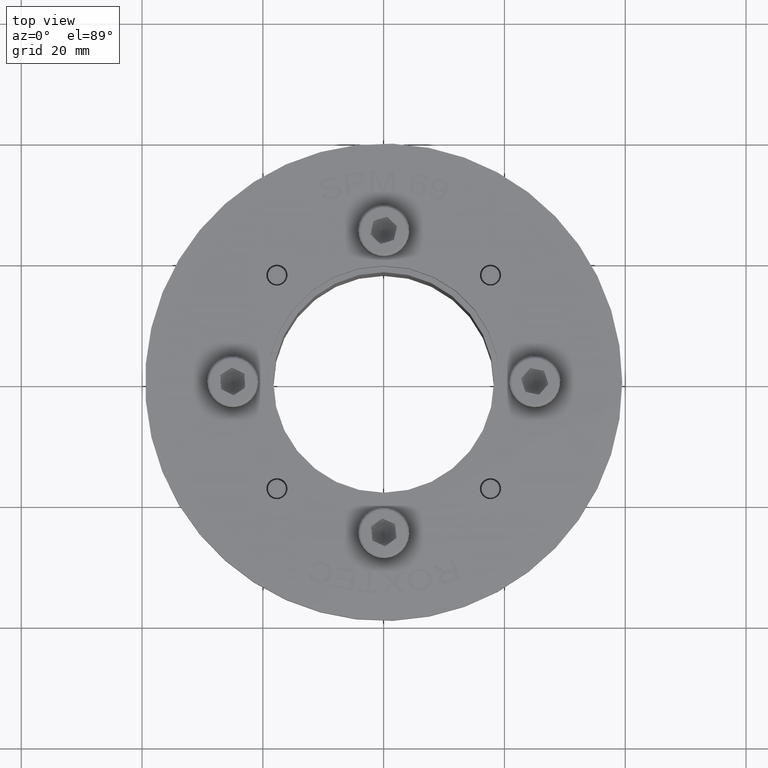
[diagram: clean part render]
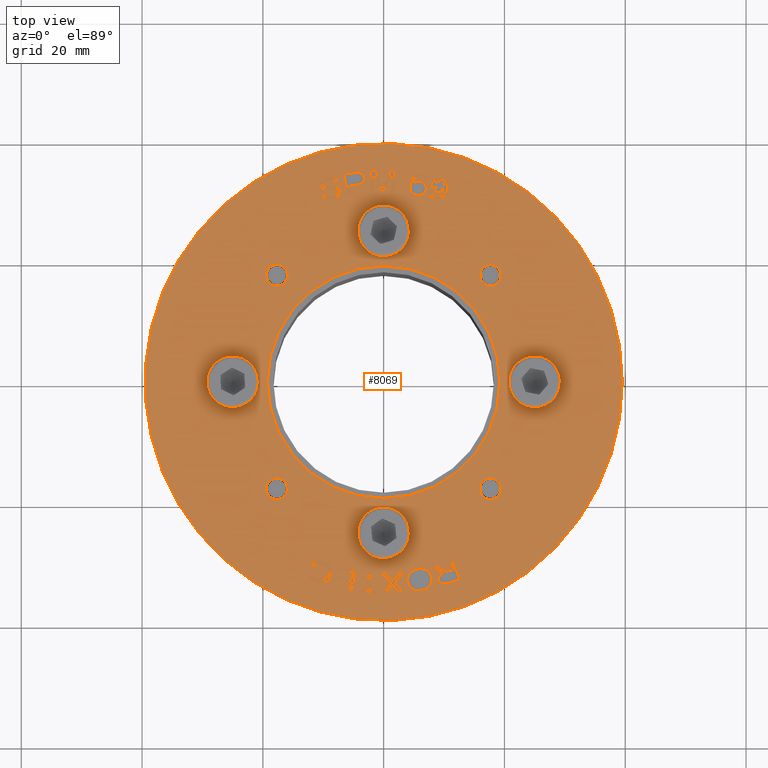
[diagram: same view with one face highlighted and labeled with its STEP entity id]
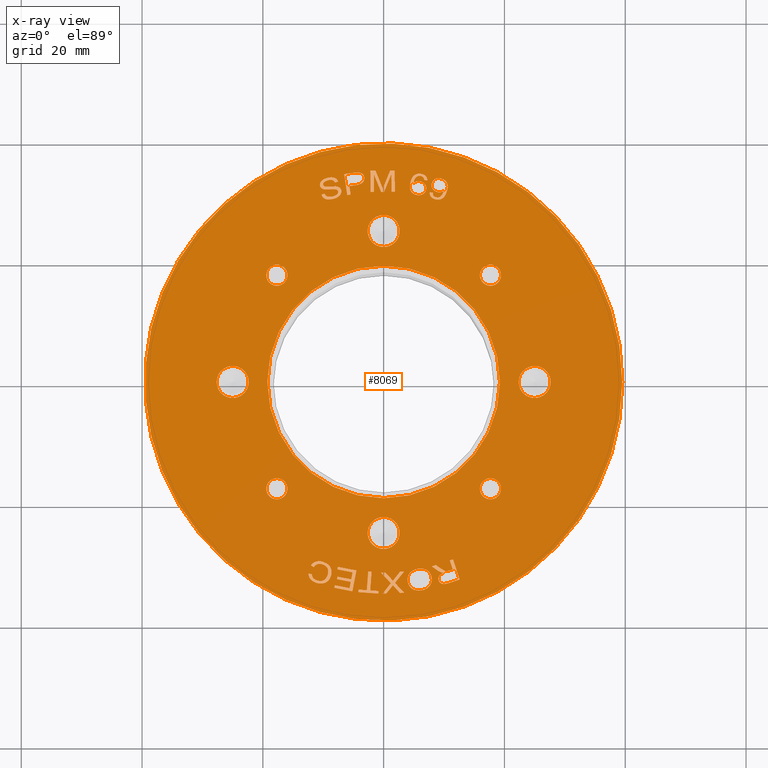
[diagram: x-ray of the same camera — body ghosted, the highlighted face saturated]
A machine part, top view. The second image highlights one B-rep face of the part: STEP entity #8069.
The next image is the same camera in x-ray: the body ghosted, the highlighted face saturated — about 0% of this face is hidden behind the body in this view.
In plain terms, the highlighted planar face has unit normal (0, 0, 1).
Its self-contained STEP definition (entity closure, byte-faithful):
#2490=CARTESIAN_POINT('',(-10.115883887980521,-2.499999999999991,30.18920924591216));
#2491=VERTEX_POINT('',#2490);
#2492=CARTESIAN_POINT('',(-11.561049028639578,-2.499999999999991,30.648826169994479));
#2493=VERTEX_POINT('',#2492);
#2494=CARTESIAN_POINT('',(-10.115883887980521,-2.499999999999991,30.18920924591216));
#2495=CARTESIAN_POINT('',(-10.559014769151425,-2.499999999999991,30.042311957658519));
#2496=CARTESIAN_POINT('',(-11.312822870122696,-2.499999999999991,30.264579639254684));
#2497=CARTESIAN_POINT('',(-11.561049028639578,-2.499999999999991,30.648826169994479));
#2498=QUASI_UNIFORM_CURVE('',2,(#2494,#2495,#2496,#2497),.UNSPECIFIED.,.F.,.U.);
#2499=EDGE_CURVE('',#2491,#2493,#2498,.T.);
#2538=CARTESIAN_POINT('',(-9.282821305249939,-2.499999999999991,31.983006378855837));
#2539=VERTEX_POINT('',#2538);
#2540=CARTESIAN_POINT('',(-9.282821305249939,-2.499999999999991,31.983006378855837));
#2541=CARTESIAN_POINT('',(-9.142639321602175,-2.499999999999991,31.560132909395598));
#2542=CARTESIAN_POINT('',(-9.229050698936943,-2.499999999999991,30.828877463576148));
#2543=CARTESIAN_POINT('',(-9.75125047718846,-2.499999999999991,30.310084728818019));
#2544=CARTESIAN_POINT('',(-10.115883887980521,-2.499999999999991,30.18920924591216));
#2545=QUASI_UNIFORM_CURVE('',2,(#2540,#2541,#2542,#2543,#2544),.UNSPECIFIED.,.F.,.U.);
#2546=EDGE_CURVE('',#2539,#2491,#2545,.T.);
#2579=CARTESIAN_POINT('',(-11.042804982141529,-2.499999999999991,32.85819292497608));
#2580=VERTEX_POINT('',#2579);
#2581=CARTESIAN_POINT('',(-11.042804982141528,-2.499999999999991,32.85819292497608));
#2582=CARTESIAN_POINT('',(-10.584481042187615,-2.499999999999991,33.010126691684142));
#2583=CARTESIAN_POINT('',(-9.84744726549442,-2.499999999999991,32.846938481831884));
#2584=CARTESIAN_POINT('',(-9.39194500509551,-2.499999999999991,32.312189319154228));
#2585=CARTESIAN_POINT('',(-9.282821305249939,-2.499999999999991,31.983006378855837));
#2586=QUASI_UNIFORM_CURVE('',2,(#2581,#2582,#2583,#2584,#2585),.UNSPECIFIED.,.F.,.U.);
#2587=EDGE_CURVE('',#2580,#2539,#2586,.T.);
#2618=CARTESIAN_POINT('',(-11.878852090664115,-2.499999999999991,31.810983669001146));
#2619=VERTEX_POINT('',#2618);
#2620=CARTESIAN_POINT('',(-11.878852090664115,-2.499999999999991,31.810983669001146));
#2621=CARTESIAN_POINT('',(-11.859618454983373,-2.499999999999991,32.219252622494807));
#2622=CARTESIAN_POINT('',(-11.442888863427259,-2.499999999999991,32.725565659009931));
#2623=CARTESIAN_POINT('',(-11.042804982141528,-2.499999999999991,32.85819292497608));
#2624=QUASI_UNIFORM_CURVE('',2,(#2620,#2621,#2622,#2623),.UNSPECIFIED.,.F.,.U.);
#2625=EDGE_CURVE('',#2619,#2580,#2624,.T.);
#2651=CARTESIAN_POINT('',(-12.432364201855176,-2.499999999999991,31.742723223492632));
#2652=VERTEX_POINT('',#2651);
#2653=CARTESIAN_POINT('',(-12.432364201855172,-2.49999999999999,31.742723223492636));
#2654=DIRECTION('',(0.992481443178133,0.0,0.122395199852976));
#2655=VECTOR('',#2654,0.557705249801548);
#2656=LINE('',#2653,#2655);
#2657=EDGE_CURVE('',#2652,#2619,#2656,.T.);
#2686=CARTESIAN_POINT('',(-11.180538412745227,-2.499999999999991,33.231290152708638));
#2687=VERTEX_POINT('',#2686);
#2688=CARTESIAN_POINT('',(-11.180538412745227,-2.499999999999991,33.231290152708638));
#2689=CARTESIAN_POINT('',(-11.778132058209994,-2.499999999999991,33.033188666835144));
#2690=CARTESIAN_POINT('',(-12.424770851341705,-2.499999999999991,32.253930187217854));
#2691=CARTESIAN_POINT('',(-12.432364201855176,-2.499999999999991,31.742723223492632));
#2692=QUASI_UNIFORM_CURVE('',2,(#2688,#2689,#2690,#2691),.UNSPECIFIED.,.F.,.U.);
#2693=EDGE_CURVE('',#2687,#2652,#2692,.T.);
#2725=CARTESIAN_POINT('',(-8.737563952449948,-2.499999999999991,32.160948013675053));
#2726=VERTEX_POINT('',#2725);
#2727=CARTESIAN_POINT('',(-8.73756395244995,-2.499999999999991,32.160948013675053));
#2728=CARTESIAN_POINT('',(-8.90964363297565,-2.499999999999991,32.680044188760974));
#2729=CARTESIAN_POINT('',(-9.642553209351343,-2.499999999999991,33.297080528455901));
#2730=CARTESIAN_POINT('',(-10.65131353180397,-2.499999999999991,33.406727485537274));
#2731=CARTESIAN_POINT('',(-11.180538412745227,-2.499999999999991,33.231290152708638));
#2732=QUASI_UNIFORM_CURVE('',2,(#2727,#2728,#2729,#2730,#2731),.UNSPECIFIED.,.F.,.U.);
#2733=EDGE_CURVE('',#2726,#2687,#2732,.T.);
#2766=CARTESIAN_POINT('',(-10.033858339581162,-2.499999999999991,29.797644930513432));
#2767=VERTEX_POINT('',#2766);
#2768=CARTESIAN_POINT('',(-10.033858339581162,-2.499999999999991,29.797644930513435));
#2769=CARTESIAN_POINT('',(-9.388153341303553,-2.499999999999991,30.011695264825889));
#2770=CARTESIAN_POINT('',(-8.725607511442764,-2.499999999999991,30.717534564228636));
#2771=CARTESIAN_POINT('',(-8.579754294211746,-2.499999999999991,31.684898838474311));
#2772=CARTESIAN_POINT('',(-8.73756395244995,-2.499999999999991,32.160948013675053));
#2773=QUASI_UNIFORM_CURVE('',2,(#2768,#2769,#2770,#2771,#2772),.UNSPECIFIED.,.F.,.U.);
#2774=EDGE_CURVE('',#2767,#2726,#2773,.T.);
#2805=CARTESIAN_POINT('',(-12.050807557784653,-2.499999999999991,30.36281248583289));
#2806=VERTEX_POINT('',#2805);
#2807=CARTESIAN_POINT('',(-12.050807557784653,-2.499999999999991,30.36281248583289));
#2808=CARTESIAN_POINT('',(-11.706581689428145,-2.499999999999991,29.875488572495247));
#2809=CARTESIAN_POINT('',(-10.654241573220432,-2.499999999999991,29.591988726958327));
#2810=CARTESIAN_POINT('',(-10.033858339581162,-2.499999999999991,29.797644930513435));
#2811=QUASI_UNIFORM_CURVE('',2,(#2807,#2808,#2809,#2810),.UNSPECIFIED.,.F.,.U.);
#2812=EDGE_CURVE('',#2806,#2767,#2811,.T.);
#2838=CARTESIAN_POINT('',(-11.561049028639577,-2.49999999999999,30.648826169994479));
#2839=DIRECTION('',(-0.863532303723506,0.0,-0.504293526059947));
#2840=VECTOR('',#2839,0.567157160228127);
#2841=LINE('',#2838,#2840);
#2842=EDGE_CURVE('',#2493,#2806,#2841,.T.);
#2878=CARTESIAN_POINT('',(-2.558287159997021,-2.49999999999999,31.397239432157381));
#2879=VERTEX_POINT('',#2878);
#2880=CARTESIAN_POINT('',(-2.004856349876618,-2.49999999999999,31.43728911307068));
#2881=VERTEX_POINT('',#2880);
#2882=CARTESIAN_POINT('',(-2.55828715999702,-2.49999999999999,31.397239432157377));
#2883=DIRECTION('',(0.997391806653021,0.0,0.072177448149845));
#2884=VECTOR('',#2883,0.554878039330973);
#2885=LINE('',#2882,#2884);
#2886=EDGE_CURVE('',#2879,#2881,#2885,.T.);
#2918=CARTESIAN_POINT('',(-2.781063510077239,-2.49999999999999,34.475698313452121));
#2919=VERTEX_POINT('',#2918);
#2920=CARTESIAN_POINT('',(-2.781063510077238,-2.49999999999999,34.475698313452128));
#2921=DIRECTION('',(0.072177448149843,0.0,-0.997391806653021));
#2922=VECTOR('',#2921,3.086509093778527);
#2923=LINE('',#2920,#2922);
#2924=EDGE_CURVE('',#2919,#2879,#2923,.T.);
#2949=CARTESIAN_POINT('',(-4.164640535378247,-2.49999999999999,34.375574111168881));
#2950=VERTEX_POINT('',#2949);
#2951=CARTESIAN_POINT('',(-4.164640535378245,-2.49999999999999,34.375574111168888));
#2952=DIRECTION('',(0.997391806653021,0.0,0.07217744814984));
#2953=VECTOR('',#2952,1.387195098327426);
#2954=LINE('',#2951,#2953);
#2955=EDGE_CURVE('',#2950,#2919,#2954,.T.);
#2980=CARTESIAN_POINT('',(-4.194485249520367,-2.49999999999999,34.78798649371052));
#2981=VERTEX_POINT('',#2980);
#2982=CARTESIAN_POINT('',(-4.194485249520366,-2.49999999999999,34.78798649371052));
#2983=DIRECTION('',(0.072177448149841,0.0,-0.997391806653021));
#2984=VECTOR('',#2983,0.413490846616822);
#2985=LINE('',#2982,#2984);
#2986=EDGE_CURVE('',#2981,#2950,#2985,.T.);
#3011=CARTESIAN_POINT('',(-0.879221838895261,-2.49999999999999,35.027899486104602));
#3012=VERTEX_POINT('',#3011);
#3013=CARTESIAN_POINT('',(-0.879221838895264,-2.49999999999999,35.027899486104602));
#3014=DIRECTION('',(-0.997391806653021,0.0,-0.072177448149843));
#3015=VECTOR('',#3014,3.323932870223027);
#3016=LINE('',#3013,#3015);
#3017=EDGE_CURVE('',#3012,#2981,#3016,.T.);
#3042=CARTESIAN_POINT('',(-0.84937712475314,-2.49999999999999,34.615487103562963));
#3043=VERTEX_POINT('',#3042);
#3044=CARTESIAN_POINT('',(-0.849377124753137,-2.49999999999999,34.615487103562963));
#3045=DIRECTION('',(-0.072177448149845,0.0,0.997391806653021));
#3046=VECTOR('',#3045,0.413490846616822);
#3047=LINE('',#3044,#3046);
#3048=EDGE_CURVE('',#3043,#3012,#3047,.T.);
#3073=CARTESIAN_POINT('',(-2.227632699956836,-2.49999999999999,34.51574799436542));
#3074=VERTEX_POINT('',#3073);
#3075=CARTESIAN_POINT('',(-2.227632699956835,-2.49999999999999,34.51574799436542));
#3076=DIRECTION('',(0.997391806653021,0.0,0.07217744814984));
#3077=VECTOR('',#3076,1.381859732564631);
#3078=LINE('',#3075,#3077);
#3079=EDGE_CURVE('',#3074,#3043,#3078,.T.);
#3104=CARTESIAN_POINT('',(-2.004856349876611,-2.49999999999999,31.437289113070683));
#3105=DIRECTION('',(-0.072177448149843,0.0,0.997391806653021));
#3106=VECTOR('',#3105,3.086509093778528);
#3107=LINE('',#3104,#3106);
#3108=EDGE_CURVE('',#2881,#3074,#3107,.T.);
#3313=CARTESIAN_POINT('',(10.956312691981173,-2.499999999999989,29.553682256122073));
#3314=VERTEX_POINT('',#3313);
#3315=CARTESIAN_POINT('',(11.483005396458594,-2.499999999999989,29.379084336369168));
#3316=VERTEX_POINT('',#3315);
#3317=CARTESIAN_POINT('',(10.956312691981172,-2.49999999999999,29.553682256122062));
#3318=DIRECTION('',(0.949204450607683,0.0,-0.314659992605617));
#3319=VECTOR('',#3318,0.554878039330968);
#3320=LINE('',#3317,#3319);
#3321=EDGE_CURVE('',#3314,#3316,#3320,.T.);
#3353=CARTESIAN_POINT('',(11.445690515134753,-2.499999999999989,31.029941134537154));
#3354=VERTEX_POINT('',#3353);
#3355=CARTESIAN_POINT('',(11.445690515134761,-2.49999999999999,31.029941134537161));
#3356=DIRECTION('',(-0.314659992605624,0.0,-0.949204450607681));
#3357=VECTOR('',#3356,1.555259119855567);
#3358=LINE('',#3355,#3357);
#3359=EDGE_CURVE('',#3354,#3314,#3358,.T.);
#3384=CARTESIAN_POINT('',(10.835435987350817,-2.499999999999989,31.232239685789324));
#3385=VERTEX_POINT('',#3384);
#3386=CARTESIAN_POINT('',(10.835435987350817,-2.49999999999999,31.232239685789324));
#3387=DIRECTION('',(0.949204450607679,0.0,-0.314659992605629));
#3388=VECTOR('',#3387,0.642911574417138);
#3389=LINE('',#3386,#3388);
#3390=EDGE_CURVE('',#3385,#3354,#3389,.T.);
#3417=CARTESIAN_POINT('',(10.536667039091693,-2.499999999999989,31.314418543791589));
#3418=VERTEX_POINT('',#3417);
#3419=CARTESIAN_POINT('',(10.536667039091691,-2.499999999999989,31.314418543791589));
#3420=CARTESIAN_POINT('',(10.630329693780284,-2.499999999999989,31.300232144923868));
#3421=CARTESIAN_POINT('',(10.835435987350817,-2.499999999999989,31.232239685789324));
#3422=QUASI_UNIFORM_CURVE('',2,(#3419,#3420,#3421),.UNSPECIFIED.,.F.,.U.);
#3423=EDGE_CURVE('',#3418,#3385,#3422,.T.);
#3454=CARTESIAN_POINT('',(9.392691525262563,-2.499999999999989,30.83927088836916));
#3455=VERTEX_POINT('',#3454);
#3456=CARTESIAN_POINT('',(9.392691525262563,-2.499999999999989,30.83927088836916));
#3457=CARTESIAN_POINT('',(9.722170326408181,-2.499999999999989,31.061681121209649));
#3458=CARTESIAN_POINT('',(10.125893783607456,-2.499999999999989,31.279152436252122));
#3459=CARTESIAN_POINT('',(10.406728438070319,-2.499999999999989,31.329388606788541));
#3460=CARTESIAN_POINT('',(10.536667039091691,-2.499999999999989,31.314418543791589));
#3461=QUASI_UNIFORM_CURVE('',2,(#3456,#3457,#3458,#3459,#3460),.UNSPECIFIED.,.F.,.U.);
#3462=EDGE_CURVE('',#3455,#3418,#3461,.T.);
#3489=CARTESIAN_POINT('',(8.636839051109451,-2.499999999999989,30.322584633495453));
#3490=VERTEX_POINT('',#3489);
#3491=CARTESIAN_POINT('',(8.636839051109453,-2.49999999999999,30.322584633495453));
#3492=DIRECTION('',(0.825549456331796,0.0,0.564329775176072));
#3493=VECTOR('',#3492,0.915575037153588);
#3494=LINE('',#3491,#3493);
#3495=EDGE_CURVE('',#3490,#3455,#3494,.T.);
#3520=CARTESIAN_POINT('',(7.975940994048841,-2.499999999999989,30.54167144626232));
#3521=VERTEX_POINT('',#3520);
#3522=CARTESIAN_POINT('',(7.975940994048841,-2.49999999999999,30.541671446262317));
#3523=DIRECTION('',(0.94920445060768,0.0,-0.314659992605625));
#3524=VECTOR('',#3523,0.69626523204511);
#3525=LINE('',#3522,#3524);
#3526=EDGE_CURVE('',#3521,#3490,#3525,.T.);
#3551=CARTESIAN_POINT('',(8.966895636712899,-2.499999999999989,31.216498674175281));
#3552=VERTEX_POINT('',#3551);
#3553=CARTESIAN_POINT('',(8.966895636712902,-2.49999999999999,31.216498674175284));
#3554=DIRECTION('',(-0.826546975479139,0.0,-0.562867744080514));
#3555=VECTOR('',#3554,1.198909042150468);
#3556=LINE('',#3553,#3555);
#3557=EDGE_CURVE('',#3552,#3521,#3556,.T.);
#3584=CARTESIAN_POINT('',(9.549327276745951,-2.499999999999989,31.515250506319745));
#3585=VERTEX_POINT('',#3584);
#3586=CARTESIAN_POINT('',(9.549327276745951,-2.499999999999989,31.515250506319745));
#3587=CARTESIAN_POINT('',(9.260140303235621,-2.499999999999989,31.414384743743277));
#3588=CARTESIAN_POINT('',(8.966895636712899,-2.499999999999989,31.216498674175281));
#3589=QUASI_UNIFORM_CURVE('',2,(#3586,#3587,#3588),.UNSPECIFIED.,.F.,.U.);
#3590=EDGE_CURVE('',#3585,#3552,#3589,.T.);
#3617=CARTESIAN_POINT('',(9.922943361111786,-2.499999999999989,31.574075928926312));
#3618=VERTEX_POINT('',#3617);
#3619=CARTESIAN_POINT('',(9.922943361111786,-2.499999999999989,31.574075928926316));
#3620=CARTESIAN_POINT('',(9.685072083114326,-2.499999999999989,31.560185390905819));
#3621=CARTESIAN_POINT('',(9.549327276745951,-2.499999999999989,31.515250506319745));
#3622=QUASI_UNIFORM_CURVE('',2,(#3619,#3620,#3621),.UNSPECIFIED.,.F.,.U.);
#3623=EDGE_CURVE('',#3618,#3585,#3622,.T.);
#3652=CARTESIAN_POINT('',(9.100859655670874,-2.499999999999989,32.849922919065627));
#3653=VERTEX_POINT('',#3652);
#3654=CARTESIAN_POINT('',(9.100859655670874,-2.499999999999989,32.849922919065627));
#3655=CARTESIAN_POINT('',(8.983341825067955,-2.499999999999989,32.495418214128904));
#3656=CARTESIAN_POINT('',(9.372496220254471,-2.499999999999989,31.829619872102128));
#3657=CARTESIAN_POINT('',(9.922943361111786,-2.499999999999989,31.574075928926316));
#3658=QUASI_UNIFORM_CURVE('',2,(#3654,#3655,#3656,#3657),.UNSPECIFIED.,.F.,.U.);
#3659=EDGE_CURVE('',#3653,#3618,#3658,.T.);
#3691=CARTESIAN_POINT('',(10.819388356530952,-2.499999999999989,33.286370770706441));
#3692=VERTEX_POINT('',#3691);
#3693=CARTESIAN_POINT('',(10.819388356530952,-2.499999999999989,33.286370770706441));
#3694=CARTESIAN_POINT('',(10.287631299125866,-2.499999999999989,33.462647516610815));
#3695=CARTESIAN_POINT('',(9.67348632516908,-2.499999999999989,33.466694451264615));
#3696=CARTESIAN_POINT('',(9.191516267850266,-2.499999999999989,33.123397977159676));
#3697=CARTESIAN_POINT('',(9.100859655670874,-2.499999999999989,32.849922919065627));
#3698=QUASI_UNIFORM_CURVE('',2,(#3693,#3694,#3695,#3696,#3697),.UNSPECIFIED.,.F.,.U.);
#3699=EDGE_CURVE('',#3692,#3653,#3698,.T.);
#3726=CARTESIAN_POINT('',(12.584315351823081,-2.499999999999989,32.701299856919057));
#3727=VERTEX_POINT('',#3726);
#3728=CARTESIAN_POINT('',(12.584315351823085,-2.49999999999999,32.701299856919057));
#3729=DIRECTION('',(-0.949204450607681,0.0,0.314659992605624));
#3730=VECTOR('',#3729,1.859374968335033);
#3731=LINE('',#3728,#3730);
#3732=EDGE_CURVE('',#3727,#3692,#3731,.T.);
#3757=CARTESIAN_POINT('',(11.483005396458598,-2.49999999999999,29.379084336369168));
#3758=DIRECTION('',(0.314659992605624,0.0,0.949204450607681));
#3759=VECTOR('',#3758,3.499999940395357);
#3760=LINE('',#3757,#3759);
#3761=EDGE_CURVE('',#3316,#3727,#3760,.T.);
#3966=CARTESIAN_POINT('',(5.64321166510384,-2.499999999999989,30.930733667454891));
#3967=VERTEX_POINT('',#3966);
#3968=CARTESIAN_POINT('',(7.933631060892123,-2.499999999999989,32.3046945610389));
#3969=VERTEX_POINT('',#3968);
#3970=CARTESIAN_POINT('',(5.64321166510384,-2.499999999999989,30.930733667454895));
#3971=CARTESIAN_POINT('',(6.225788461429536,-2.499999999999989,30.824265656822401));
#3972=CARTESIAN_POINT('',(7.230111220966511,-2.499999999999989,31.12614602988964));
#3973=CARTESIAN_POINT('',(7.850662746300136,-2.499999999999989,31.85070453507338));
#3974=CARTESIAN_POINT('',(7.933631060892123,-2.499999999999989,32.3046945610389));
#3975=QUASI_UNIFORM_CURVE('',2,(#3970,#3971,#3972,#3973,#3974),.UNSPECIFIED.,.F.,.U.);
#3976=EDGE_CURVE('',#3967,#3969,#3975,.T.);
#4016=CARTESIAN_POINT('',(3.993998261277908,-2.49999999999999,33.065354650841392));
#4017=VERTEX_POINT('',#4016);
#4018=CARTESIAN_POINT('',(3.993998261277908,-2.49999999999999,33.065354650841392));
#4019=CARTESIAN_POINT('',(3.898560720215451,-2.49999999999999,32.543134909990883));
#4020=CARTESIAN_POINT('',(4.253965667700243,-2.49999999999999,31.623945644699599));
#4021=CARTESIAN_POINT('',(5.10524660543372,-2.499999999999989,31.02904872231823));
#4022=CARTESIAN_POINT('',(5.64321166510384,-2.499999999999989,30.930733667454895));
#4023=QUASI_UNIFORM_CURVE('',2,(#4018,#4019,#4020,#4021,#4022),.UNSPECIFIED.,.F.,.U.);
#4024=EDGE_CURVE('',#4017,#3967,#4023,.T.);
#4057=CARTESIAN_POINT('',(6.291385149932516,-2.499999999999989,34.492279526124257));
#4058=VERTEX_POINT('',#4057);
#4059=CARTESIAN_POINT('',(6.291385149932516,-2.499999999999989,34.492279526124257));
#4060=CARTESIAN_POINT('',(5.719305232819895,-2.499999999999989,34.596829194222828));
#4061=CARTESIAN_POINT('',(4.71738040145032,-2.499999999999989,34.308069920171938));
#4062=CARTESIAN_POINT('',(4.088476631073409,-2.49999999999999,33.582325952085363));
#4063=CARTESIAN_POINT('',(3.993998261277908,-2.49999999999999,33.065354650841392));
#4064=QUASI_UNIFORM_CURVE('',2,(#4059,#4060,#4061,#4062,#4063),.UNSPECIFIED.,.F.,.U.);
#4065=EDGE_CURVE('',#4058,#4017,#4064,.T.);
#4096=CARTESIAN_POINT('',(7.933631060892123,-2.499999999999989,32.3046945610389));
#4097=CARTESIAN_POINT('',(8.090455563039985,-2.499999999999989,33.162814436707826));
#4098=CARTESIAN_POINT('',(7.162626124617788,-2.499999999999989,34.333057095808996));
#4099=CARTESIAN_POINT('',(6.291385149932516,-2.499999999999989,34.492279526124257));
#4100=QUASI_UNIFORM_CURVE('',2,(#4096,#4097,#4098,#4099),.UNSPECIFIED.,.F.,.U.);
#4101=EDGE_CURVE('',#3969,#4058,#4100,.T.);
#4138=CARTESIAN_POINT('',(2.725349826532191,-2.49999999999999,31.407238703513478));
#4139=VERTEX_POINT('',#4138);
#4140=CARTESIAN_POINT('',(3.391548983217686,-2.49999999999999,31.376223693222784));
#4141=VERTEX_POINT('',#4140);
#4142=CARTESIAN_POINT('',(2.725349826532192,-2.49999999999999,31.407238703513482));
#4143=DIRECTION('',(0.998918066807323,0.0,-0.04650479336499));
#4144=VECTOR('',#4143,0.666920720349728);
#4145=LINE('',#4142,#4144);
#4146=EDGE_CURVE('',#4139,#4141,#4145,.T.);
#4178=CARTESIAN_POINT('',(1.721084027776781,-2.49999999999999,32.666432268437127));
#4179=VERTEX_POINT('',#4178);
#4180=CARTESIAN_POINT('',(1.721084027776776,-2.49999999999999,32.66643226843712));
#4181=DIRECTION('',(0.623524883523559,0.0,-0.781803504486218));
#4182=VECTOR('',#4181,1.610626657079463);
#4183=LINE('',#4180,#4182);
#4184=EDGE_CURVE('',#4179,#4139,#4183,.T.);
#4211=CARTESIAN_POINT('',(1.535550721267176,-2.49999999999999,32.926103594396906));
#4212=VERTEX_POINT('',#4211);
#4213=CARTESIAN_POINT('',(1.535550721267176,-2.49999999999999,32.926103594396906));
#4214=CARTESIAN_POINT('',(1.663143326473111,-2.49999999999999,32.741235158305891));
#4215=CARTESIAN_POINT('',(1.721084027776781,-2.49999999999999,32.66643226843712));
#4216=QUASI_UNIFORM_CURVE('',2,(#4213,#4214,#4215),.UNSPECIFIED.,.F.,.U.);
#4217=EDGE_CURVE('',#4212,#4179,#4216,.T.);
#4244=CARTESIAN_POINT('',(1.352290077194763,-2.49999999999999,32.718318970306385));
#4245=VERTEX_POINT('',#4244);
#4246=CARTESIAN_POINT('',(1.352290077194763,-2.49999999999999,32.718318970306385));
#4247=CARTESIAN_POINT('',(1.445190767523759,-2.49999999999999,32.8208168540177));
#4248=CARTESIAN_POINT('',(1.535550721267176,-2.49999999999999,32.926103594396906));
#4249=QUASI_UNIFORM_CURVE('',2,(#4246,#4247,#4248),.UNSPECIFIED.,.F.,.U.);
#4250=EDGE_CURVE('',#4245,#4212,#4249,.T.);
#4275=CARTESIAN_POINT('',(0.239094573781926,-2.49999999999999,31.522986721918343));
#4276=VERTEX_POINT('',#4275);
#4277=CARTESIAN_POINT('',(0.239094573781927,-2.49999999999999,31.522986721918343));
#4278=DIRECTION('',(0.681516892855589,0.0,0.731802380942057));
#4279=VECTOR('',#4278,1.633408526013919);
#4280=LINE('',#4277,#4279);
#4281=EDGE_CURVE('',#4276,#4245,#4280,.T.);
#4306=CARTESIAN_POINT('',(-0.448422955917504,-2.49999999999999,31.55499421253834));
#4307=VERTEX_POINT('',#4306);
#4308=CARTESIAN_POINT('',(-0.448422955917502,-2.49999999999999,31.554994212538343));
#4309=DIRECTION('',(0.998918066807323,0.0,-0.04650479336499));
#4310=VECTOR('',#4309,0.688262183400916);
#4311=LINE('',#4308,#4310);
#4312=EDGE_CURVE('',#4307,#4276,#4311,.T.);
#4337=CARTESIAN_POINT('',(1.203830768926764,-2.49999999999999,33.315426987533108));
#4338=VERTEX_POINT('',#4337);
#4339=CARTESIAN_POINT('',(1.203830768926764,-2.49999999999999,33.315426987533101));
#4340=DIRECTION('',(-0.68434839968446,0.0,-0.729155174053725));
#4341=VECTOR('',#4340,2.414345858931051);
#4342=LINE('',#4339,#4341);
#4343=EDGE_CURVE('',#4338,#4307,#4342,.T.);
#4368=CARTESIAN_POINT('',(-0.173734723588787,-2.49999999999999,35.045996865094978));
#4369=VERTEX_POINT('',#4368);
#4370=CARTESIAN_POINT('',(-0.173734723588789,-2.49999999999999,35.045996865094978));
#4371=DIRECTION('',(0.622793726197085,0.0,-0.782386077719658));
#4372=VECTOR('',#4371,2.211912924889702);
#4373=LINE('',#4370,#4372);
#4374=EDGE_CURVE('',#4369,#4338,#4373,.T.);
#4399=CARTESIAN_POINT('',(0.433838907308384,-2.49999999999999,35.017711175709863));
#4400=VERTEX_POINT('',#4399);
#4401=CARTESIAN_POINT('',(0.433838907308383,-2.49999999999999,35.017711175709863));
#4402=DIRECTION('',(-0.998918066807323,0.0,0.046504793364993));
#4403=VECTOR('',#4402,0.608231696958948);
#4404=LINE('',#4401,#4403);
#4405=EDGE_CURVE('',#4400,#4369,#4404,.T.);
#4430=CARTESIAN_POINT('',(1.227288093739558,-2.49999999999999,34.048742300051799));
#4431=VERTEX_POINT('',#4430);
#4432=CARTESIAN_POINT('',(1.227288093739561,-2.49999999999999,34.048742300051806));
#4433=DIRECTION('',(-0.633551725266279,0.0,0.773700336960067));
#4434=VECTOR('',#4433,1.252382646575059);
#4435=LINE('',#4432,#4434);
#4436=EDGE_CURVE('',#4431,#4400,#4435,.T.);
#4463=CARTESIAN_POINT('',(1.539361989363474,-2.49999999999999,33.638968954189806));
#4464=VERTEX_POINT('',#4463);
#4465=CARTESIAN_POINT('',(1.539361989363474,-2.49999999999999,33.638968954189806));
#4466=CARTESIAN_POINT('',(1.409476767654285,-2.49999999999999,33.831955840202212));
#4467=CARTESIAN_POINT('',(1.227288093739558,-2.49999999999999,34.048742300051806));
#4468=QUASI_UNIFORM_CURVE('',2,(#4465,#4466,#4467),.UNSPECIFIED.,.F.,.U.);
#4469=EDGE_CURVE('',#4464,#4431,#4468,.T.);
#4496=CARTESIAN_POINT('',(1.897888887628073,-2.49999999999999,34.054910382494327));
#4497=VERTEX_POINT('',#4496);
#4498=CARTESIAN_POINT('',(1.897888887628073,-2.49999999999999,34.054910382494327));
#4499=CARTESIAN_POINT('',(1.647695683525947,-2.49999999999999,33.786148080349918));
#4500=CARTESIAN_POINT('',(1.539361989363474,-2.49999999999999,33.638968954189806));
#4501=QUASI_UNIFORM_CURVE('',2,(#4498,#4499,#4500),.UNSPECIFIED.,.F.,.U.);
#4502=EDGE_CURVE('',#4497,#4464,#4501,.T.);
#4527=CARTESIAN_POINT('',(2.701580836665807,-2.49999999999999,34.912136080680348));
#4528=VERTEX_POINT('',#4527);
#4529=CARTESIAN_POINT('',(2.701580836665807,-2.49999999999999,34.912136080680355));
#4530=DIRECTION('',(-0.683960540088729,0.0,-0.729519005647923));
#4531=VECTOR('',#4530,1.175056018485324);
#4532=LINE('',#4529,#4531);
#4533=EDGE_CURVE('',#4528,#4497,#4532,.T.);
#4558=CARTESIAN_POINT('',(3.362450400097817,-2.49999999999999,34.881369190471979));
#4559=VERTEX_POINT('',#4558);
#4560=CARTESIAN_POINT('',(3.362450400097819,-2.49999999999999,34.881369190471979));
#4561=DIRECTION('',(-0.998918066807323,0.0,0.046504793364991));
#4562=VECTOR('',#4561,0.661585354586929);
#4563=LINE('',#4560,#4562);
#4564=EDGE_CURVE('',#4559,#4528,#4563,.T.);
#4589=CARTESIAN_POINT('',(1.858378258775989,-2.49999999999999,33.263589844393131));
#4590=VERTEX_POINT('',#4589);
#4591=CARTESIAN_POINT('',(1.858378258775993,-2.49999999999999,33.263589844393131));
#4592=DIRECTION('',(0.680900325630326,0.0,0.732376096385263));
#4593=VECTOR('',#4592,2.208946133091463);
#4594=LINE('',#4591,#4593);
#4595=EDGE_CURVE('',#4590,#4559,#4594,.T.);
#4620=CARTESIAN_POINT('',(3.391548983217687,-2.49999999999999,31.376223693222784));
#4621=DIRECTION('',(-0.630514771067336,0.0,0.776177250031142));
#4622=VECTOR('',#4621,2.431617457345758);
#4623=LINE('',#4620,#4622);
#4624=EDGE_CURVE('',#4141,#4590,#4623,.T.);
#4666=CARTESIAN_POINT('',(-7.588220503612966,-2.499999999999991,30.616201814852491));
#4667=VERTEX_POINT('',#4666);
#4668=CARTESIAN_POINT('',(-4.515934448097881,-2.49999999999999,31.21025660220289));
#4669=VERTEX_POINT('',#4668);
#4670=CARTESIAN_POINT('',(-7.588220503612964,-2.49999999999999,30.616201814852495));
#4671=DIRECTION('',(0.981814486294136,0.0,0.189842867927616));
#4672=VECTOR('',#4671,3.129192019880913);
#4673=LINE('',#4670,#4672);
#4674=EDGE_CURVE('',#4667,#4669,#4673,.T.);
#4706=CARTESIAN_POINT('',(-7.666718791796523,-2.499999999999991,31.022173118010919));
#4707=VERTEX_POINT('',#4706);
#4708=CARTESIAN_POINT('',(-7.666718791796521,-2.49999999999999,31.022173118010926));
#4709=DIRECTION('',(0.189842867927615,0.0,-0.981814486294136));
#4710=VECTOR('',#4709,0.413490846616831);
#4711=LINE('',#4708,#4710);
#4712=EDGE_CURVE('',#4707,#4667,#4711,.T.);
#4737=CARTESIAN_POINT('',(-5.139220033423076,-2.499999999999991,31.510888267024676));
#4738=VERTEX_POINT('',#4737);
#4739=CARTESIAN_POINT('',(-5.139220033423076,-2.49999999999999,31.510888267024676));
#4740=DIRECTION('',(-0.981814486294136,0.0,-0.189842867927616));
#4741=VECTOR('',#4740,2.574313980549936);
#4742=LINE('',#4739,#4741);
#4743=EDGE_CURVE('',#4738,#4707,#4742,.T.);
#4768=CARTESIAN_POINT('',(-5.365092527164148,-2.499999999999991,32.679037952241835));
#4769=VERTEX_POINT('',#4768);
#4770=CARTESIAN_POINT('',(-5.365092527164144,-2.49999999999999,32.679037952241835));
#4771=DIRECTION('',(0.189842867927616,0.0,-0.981814486294136));
#4772=VECTOR('',#4771,1.18978656510391);
#4773=LINE('',#4770,#4772);
#4774=EDGE_CURVE('',#4769,#4738,#4773,.T.);
#4799=CARTESIAN_POINT('',(-7.643770164246946,-2.499999999999991,32.238434657276059));
#4800=VERTEX_POINT('',#4799);
#4801=CARTESIAN_POINT('',(-7.643770164246945,-2.49999999999999,32.238434657276066));
#4802=DIRECTION('',(0.981814486294136,0.0,0.189842867927615));
#4803=VECTOR('',#4802,2.320884106817042);
#4804=LINE('',#4801,#4803);
#4805=EDGE_CURVE('',#4800,#4769,#4804,.T.);
#4830=CARTESIAN_POINT('',(-7.722268452430505,-2.499999999999991,32.64440596043449));
#4831=VERTEX_POINT('',#4830);
#4832=CARTESIAN_POINT('',(-7.722268452430503,-2.49999999999999,32.64440596043449));
#4833=DIRECTION('',(0.189842867927625,0.0,-0.981814486294134));
#4834=VECTOR('',#4833,0.413490846616824);
#4835=LINE('',#4832,#4834);
#4836=EDGE_CURVE('',#4831,#4800,#4835,.T.);
#4861=CARTESIAN_POINT('',(-5.443590815347705,-2.499999999999991,33.085009255400266));
#4862=VERTEX_POINT('',#4861);
#4863=CARTESIAN_POINT('',(-5.443590815347706,-2.49999999999999,33.085009255400266));
#4864=DIRECTION('',(-0.981814486294136,0.0,-0.189842867927615));
#4865=VECTOR('',#4864,2.320884106817046);
#4866=LINE('',#4863,#4865);
#4867=EDGE_CURVE('',#4862,#4831,#4866,.T.);
#4892=CARTESIAN_POINT('',(-5.646673483487101,-2.499999999999991,34.135296304216581));
#4893=VERTEX_POINT('',#4892);
#4894=CARTESIAN_POINT('',(-5.646673483487096,-2.49999999999999,34.135296304216588));
#4895=DIRECTION('',(0.189842867927616,0.0,-0.981814486294136));
#4896=VECTOR('',#4895,1.069740835440957);
#4897=LINE('',#4894,#4896);
#4898=EDGE_CURVE('',#4893,#4862,#4897,.T.);
#4923=CARTESIAN_POINT('',(-8.079882132739883,-2.499999999999991,33.664813015684175));
#4924=VERTEX_POINT('',#4923);
#4925=CARTESIAN_POINT('',(-8.079882132739883,-2.49999999999999,33.664813015684167));
#4926=DIRECTION('',(0.981814486294136,0.0,0.189842867927615));
#4927=VECTOR('',#4926,2.478277396819579);
#4928=LINE('',#4925,#4927);
#4929=EDGE_CURVE('',#4924,#4893,#4928,.T.);
#4954=CARTESIAN_POINT('',(-8.158380420923439,-2.499999999999991,34.070784318842598));
#4955=VERTEX_POINT('',#4954);
#4956=CARTESIAN_POINT('',(-8.158380420923439,-2.49999999999999,34.070784318842605));
#4957=DIRECTION('',(0.189842867927615,0.0,-0.981814486294136));
#4958=VECTOR('',#4957,0.413490846616831);
#4959=LINE('',#4956,#4958);
#4960=EDGE_CURVE('',#4955,#4924,#4959,.T.);
#4985=CARTESIAN_POINT('',(-5.180384474529022,-2.499999999999991,34.646607245711664));
#4986=VERTEX_POINT('',#4985);
#4987=CARTESIAN_POINT('',(-5.180384474529019,-2.49999999999999,34.646607245711664));
#4988=DIRECTION('',(-0.981814486294136,0.0,-0.189842867927616));
#4989=VECTOR('',#4988,3.033155436150547);
#4990=LINE('',#4987,#4989);
#4991=EDGE_CURVE('',#4986,#4955,#4990,.T.);
#5016=CARTESIAN_POINT('',(-4.515934448097877,-2.49999999999999,31.210256602202897));
#5017=DIRECTION('',(-0.189842867927617,0.0,0.981814486294136));
#5018=VECTOR('',#5017,3.499999940395351);
#5019=LINE('',#5016,#5018);
#5020=EDGE_CURVE('',#4669,#4986,#5019,.T.);
#5058=CARTESIAN_POINT('',(-1.634527521433246,-2.49999999999999,-31.491886359930973));
#5059=VERTEX_POINT('',#5058);
#5060=CARTESIAN_POINT('',(-2.170724455258421,-2.49999999999999,-31.489083557927824));
#5061=VERTEX_POINT('',#5060);
#5062=CARTESIAN_POINT('',(-1.634527521433245,-2.49999999999999,-31.491886359930977));
#5063=DIRECTION('',(-0.999986338534471,0.0,0.005227116262623));
#5064=VECTOR('',#5063,0.536204259161179);
#5065=LINE('',#5062,#5064);
#5066=EDGE_CURVE('',#5059,#5061,#5065,.T.);
#5098=CARTESIAN_POINT('',(-1.650103291769167,-2.49999999999999,-34.471647429994263));
#5099=VERTEX_POINT('',#5098);
#5100=CARTESIAN_POINT('',(-1.650103291769164,-2.49999999999999,-34.471647429994263));
#5101=DIRECTION('',(0.005227116262627,0.0,0.999986338534471));
#5102=VECTOR('',#5101,2.979801778522572);
#5103=LINE('',#5100,#5102);
#5104=EDGE_CURVE('',#5099,#5059,#5103,.T.);
#5129=CARTESIAN_POINT('',(-0.423416039061954,-2.49999999999999,-31.49821706694307));
#5130=VERTEX_POINT('',#5129);
#5131=CARTESIAN_POINT('',(-0.423416039061952,-2.49999999999999,-31.498217066943067));
#5132=DIRECTION('',(-0.381370039033562,0.0,-0.924422464746254));
#5133=VECTOR('',#5132,3.216527590410059);
#5134=LINE('',#5131,#5133);
#5135=EDGE_CURVE('',#5130,#5099,#5134,.T.);
#5160=CARTESIAN_POINT('',(0.078101491082987,-2.49999999999999,-31.500838593194771));
#5161=VERTEX_POINT('',#5160);
#5162=CARTESIAN_POINT('',(0.07810149108299,-2.49999999999999,-31.500838593194779));
#5163=DIRECTION('',(-0.999986338534471,0.0,0.005227116262629));
#5164=VECTOR('',#5163,0.501524381702994);
#5165=LINE('',#5162,#5164);
#5166=EDGE_CURVE('',#5161,#5130,#5165,.T.);
#5191=CARTESIAN_POINT('',(1.284572730349007,-2.49999999999999,-34.436300865122568));
#5192=VERTEX_POINT('',#5191);
#5193=CARTESIAN_POINT('',(1.284572730349005,-2.49999999999999,-34.436300865122568));
#5194=DIRECTION('',(-0.380143951873369,0.0,0.924927335445384));
#5195=VECTOR('',#5194,3.173722042190773);
#5196=LINE('',#5193,#5195);
#5197=EDGE_CURVE('',#5192,#5161,#5196,.T.);
#5222=CARTESIAN_POINT('',(1.299883559202044,-2.49999999999999,-31.507225077361159));
#5223=VERTEX_POINT('',#5222);
#5224=CARTESIAN_POINT('',(1.299883559202048,-2.49999999999999,-31.507225077361159));
#5225=DIRECTION('',(-0.005227116262628,0.0,-0.999986338534471));
#5226=VECTOR('',#5225,2.929115803775994);
#5227=LINE('',#5224,#5226);
#5228=EDGE_CURVE('',#5223,#5192,#5227,.T.);
#5253=CARTESIAN_POINT('',(1.836080493027219,-2.49999999999999,-31.510027879364308));
#5254=VERTEX_POINT('',#5253);
#5255=CARTESIAN_POINT('',(1.83608049302722,-2.49999999999999,-31.510027879364312));
#5256=DIRECTION('',(-0.999986338534471,0.0,0.005227116262623));
#5257=VECTOR('',#5256,0.536204259161177);
#5258=LINE('',#5255,#5257);
#5259=EDGE_CURVE('',#5254,#5223,#5258,.T.);
#5284=CARTESIAN_POINT('',(1.817785586419583,-2.49999999999999,-35.009980004631124));
#5285=VERTEX_POINT('',#5284);
#5286=CARTESIAN_POINT('',(1.817785586419587,-2.49999999999999,-35.009980004631132));
#5287=DIRECTION('',(0.005227116262628,0.0,0.999986338534471));
#5288=VECTOR('',#5287,3.499999940395361);
#5289=LINE('',#5286,#5288);
#5290=EDGE_CURVE('',#5285,#5254,#5289,.T.);
#5315=CARTESIAN_POINT('',(1.073512230512996,-2.49999999999999,-35.006089548119292));
#5316=VERTEX_POINT('',#5315);
#5317=CARTESIAN_POINT('',(1.073512230513,-2.49999999999999,-35.006089548119292));
#5318=DIRECTION('',(0.999986338534471,0.0,-0.005227116262631));
#5319=VECTOR('',#5318,0.74428352391029);
#5320=LINE('',#5317,#5319);
#5321=EDGE_CURVE('',#5316,#5285,#5320,.T.);
#5346=CARTESIAN_POINT('',(0.077873012816284,-2.49999999999999,-32.56525741011145));
#5347=VERTEX_POINT('',#5346);
#5348=CARTESIAN_POINT('',(0.077873012816285,-2.49999999999999,-32.565257410111442));
#5349=DIRECTION('',(0.377695769981941,0.0,-0.925929751837443));
#5350=VECTOR('',#5349,2.63608781677464);
#5351=LINE('',#5348,#5350);
#5352=EDGE_CURVE('',#5347,#5316,#5351,.T.);
#5379=CARTESIAN_POINT('',(-0.143280987286466,-2.49999999999999,-32.003880338113674));
#5380=VERTEX_POINT('',#5379);
#5381=CARTESIAN_POINT('',(-0.143280987286466,-2.49999999999999,-32.003880338113674));
#5382=CARTESIAN_POINT('',(-0.074912224414671,-2.49999999999999,-32.193645786639394));
#5383=CARTESIAN_POINT('',(0.077873012816284,-2.49999999999999,-32.56525741011145));
#5384=QUASI_UNIFORM_CURVE('',2,(#5381,#5382,#5383),.UNSPECIFIED.,.F.,.U.);
#5385=EDGE_CURVE('',#5380,#5347,#5384,.T.);
#5412=CARTESIAN_POINT('',(-0.348727308477137,-2.49999999999999,-32.520343980948724));
#5413=VERTEX_POINT('',#5412);
#5414=CARTESIAN_POINT('',(-0.348727308477137,-2.49999999999999,-32.520343980948724));
#5415=CARTESIAN_POINT('',(-0.20819693624172,-2.49999999999999,-32.174275047152165));
#5416=CARTESIAN_POINT('',(-0.143280987286466,-2.49999999999999,-32.003880338113674));
#5417=QUASI_UNIFORM_CURVE('',2,(#5414,#5415,#5416),.UNSPECIFIED.,.F.,.U.);
#5418=EDGE_CURVE('',#5413,#5380,#5417,.T.);
#5443=CARTESIAN_POINT('',(-1.35404602710347,-2.49999999999999,-34.993400245517961));
#5444=VERTEX_POINT('',#5443);
#5445=CARTESIAN_POINT('',(-1.354046027103467,-2.49999999999999,-34.993400245517961));
#5446=DIRECTION('',(0.376582689295914,0.0,0.926383008330063));
#5447=VECTOR('',#5446,2.669582928800979);
#5448=LINE('',#5445,#5447);
#5449=EDGE_CURVE('',#5444,#5413,#5448,.T.);
#5474=CARTESIAN_POINT('',(-2.189019361866057,-2.49999999999999,-34.989035683194643));
#5475=VERTEX_POINT('',#5474);
#5476=CARTESIAN_POINT('',(-2.189019361866057,-2.49999999999999,-34.989035683194643));
#5477=DIRECTION('',(0.999986338534471,0.0,-0.00522711626263));
#5478=VECTOR('',#5477,0.834984741877856);
#5479=LINE('',#5476,#5478);
#5480=EDGE_CURVE('',#5475,#5444,#5479,.T.);
#5505=CARTESIAN_POINT('',(-2.170724455258416,-2.49999999999999,-31.489083557927824));
#5506=DIRECTION('',(-0.005227116262628,0.0,-0.999986338534471));
#5507=VECTOR('',#5506,3.499999940395358);
#5508=LINE('',#5505,#5507);
#5509=EDGE_CURVE('',#5061,#5475,#5508,.T.);
#5750=CARTESIAN_POINT('',(-5.474928612824116,-2.499999999999991,-31.035012770790701));
#5751=VERTEX_POINT('',#5750);
#5752=CARTESIAN_POINT('',(-6.024018978507312,-2.499999999999991,-30.955078992913776));
#5753=VERTEX_POINT('',#5752);
#5754=CARTESIAN_POINT('',(-5.474928612824115,-2.49999999999999,-31.035012770790701));
#5755=DIRECTION('',(-0.989569467094511,0.0,0.14405648126442));
#5756=VECTOR('',#5755,0.554878039330974);
#5757=LINE('',#5754,#5756);
#5758=EDGE_CURVE('',#5751,#5753,#5757,.T.);
#5790=CARTESIAN_POINT('',(-5.679758918633723,-2.499999999999991,-32.442056832853886));
#5791=VERTEX_POINT('',#5790);
#5792=CARTESIAN_POINT('',(-5.67975891863372,-2.49999999999999,-32.442056832853886));
#5793=DIRECTION('',(0.14405648126442,0.0,0.989569467094511));
#5794=VECTOR('',#5793,1.421874975785609);
#5795=LINE('',#5792,#5794);
#5796=EDGE_CURVE('',#5791,#5751,#5795,.T.);
#5821=CARTESIAN_POINT('',(-4.615896335122532,-2.499999999999991,-32.596928527490419));
#5822=VERTEX_POINT('',#5821);
#5823=CARTESIAN_POINT('',(-4.615896335122532,-2.49999999999999,-32.596928527490419));
#5824=DIRECTION('',(-0.989569467094512,0.0,0.144056481264414));
#5825=VECTOR('',#5824,1.075076201203753);
#5826=LINE('',#5823,#5825);
#5827=EDGE_CURVE('',#5822,#5791,#5826,.T.);
#5856=CARTESIAN_POINT('',(-3.214354758129689,-2.49999999999999,-33.876582619207248));
#5857=VERTEX_POINT('',#5856);
#5858=CARTESIAN_POINT('',(-3.214354758129689,-2.49999999999999,-33.876582619207248));
#5859=CARTESIAN_POINT('',(-3.150177157622738,-2.49999999999999,-33.435726412144298));
#5860=CARTESIAN_POINT('',(-3.73418392099663,-2.49999999999999,-32.725283728504316));
#5861=CARTESIAN_POINT('',(-4.615896335122532,-2.499999999999991,-32.596928527490419));
#5862=QUASI_UNIFORM_CURVE('',2,(#5858,#5859,#5860,#5861),.UNSPECIFIED.,.F.,.U.);
#5863=EDGE_CURVE('',#5857,#5822,#5862,.T.);
#5895=CARTESIAN_POINT('',(-4.326859330496254,-2.49999999999999,-34.703989032414107));
#5896=VERTEX_POINT('',#5895);
#5897=CARTESIAN_POINT('',(-4.326859330496254,-2.49999999999999,-34.703989032414107));
#5898=CARTESIAN_POINT('',(-4.014487105182401,-2.49999999999999,-34.706329765023682));
#5899=CARTESIAN_POINT('',(-3.565442742580553,-2.49999999999999,-34.529077217981317));
#5900=CARTESIAN_POINT('',(-3.252015865014006,-2.49999999999999,-34.13528865688491));
#5901=CARTESIAN_POINT('',(-3.214354758129689,-2.49999999999999,-33.876582619207248));
#5902=QUASI_UNIFORM_CURVE('',2,(#5897,#5898,#5899,#5900,#5901),.UNSPECIFIED.,.F.,.U.);
#5903=EDGE_CURVE('',#5896,#5857,#5902,.T.);
#5932=CARTESIAN_POINT('',(-4.962781140643773,-2.499999999999991,-34.646460195112653));
#5933=VERTEX_POINT('',#5932);
#5934=CARTESIAN_POINT('',(-4.962781140643773,-2.499999999999991,-34.646460195112653));
#5935=CARTESIAN_POINT('',(-4.548323508854053,-2.499999999999991,-34.706794825529371));
#5936=CARTESIAN_POINT('',(-4.326859330496254,-2.49999999999999,-34.703989032414107));
#5937=QUASI_UNIFORM_CURVE('',2,(#5934,#5935,#5936),.UNSPECIFIED.,.F.,.U.);
#5938=EDGE_CURVE('',#5933,#5896,#5937,.T.);
#5963=CARTESIAN_POINT('',(-6.528216654346347,-2.499999999999991,-34.418572068761627));
#5964=VERTEX_POINT('',#5963);
#5965=CARTESIAN_POINT('',(-6.528216654346345,-2.49999999999999,-34.418572068761634));
#5966=DIRECTION('',(0.989569467094511,0.0,-0.144056481264419));
#5967=VECTOR('',#5966,1.581935948669547);
#5968=LINE('',#5965,#5967);
#5969=EDGE_CURVE('',#5964,#5933,#5968,.T.);
#5994=CARTESIAN_POINT('',(-6.024018978507307,-2.49999999999999,-30.955078992913784));
#5995=DIRECTION('',(-0.14405648126442,0.0,-0.989569467094511));
#5996=VECTOR('',#5995,3.499999940395355);
#5997=LINE('',#5994,#5996);
#5998=EDGE_CURVE('',#5753,#5964,#5997,.T.);
#6046=CARTESIAN_POINT('',(-8.249949473560063,-2.499999999999991,-30.339802119179865));
#6047=VERTEX_POINT('',#6046);
#6048=CARTESIAN_POINT('',(-10.284937518961058,-2.499999999999991,-31.008255900173424));
#6049=VERTEX_POINT('',#6048);
#6050=CARTESIAN_POINT('',(-8.249949473560065,-2.499999999999991,-30.339802119179865));
#6051=CARTESIAN_POINT('',(-8.797798622046297,-2.499999999999991,-30.189033260321484));
#6052=CARTESIAN_POINT('',(-9.612167242165109,-2.499999999999991,-30.252671195022675));
#6053=CARTESIAN_POINT('',(-10.181215049650021,-2.499999999999991,-30.671575091888222));
#6054=CARTESIAN_POINT('',(-10.284937518961058,-2.499999999999991,-31.008255900173424));
#6055=QUASI_UNIFORM_CURVE('',2,(#6050,#6051,#6052,#6053,#6054),.UNSPECIFIED.,.F.,.U.);
#6056=EDGE_CURVE('',#6047,#6049,#6055,.T.);
#6096=CARTESIAN_POINT('',(-7.033760770559335,-2.499999999999991,-31.76187452458743));
#6097=VERTEX_POINT('',#6096);
#6098=CARTESIAN_POINT('',(-7.033760770559333,-2.499999999999991,-31.761874524587427));
#6099=CARTESIAN_POINT('',(-6.959438093657312,-2.499999999999991,-31.491808042939283));
#6100=CARTESIAN_POINT('',(-7.198865504423585,-2.499999999999991,-30.914048380284068));
#6101=CARTESIAN_POINT('',(-7.815271041193054,-2.499999999999991,-30.45942623724121));
#6102=CARTESIAN_POINT('',(-8.249949473560065,-2.499999999999991,-30.339802119179865));
#6103=QUASI_UNIFORM_CURVE('',2,(#6098,#6099,#6100,#6101,#6102),.UNSPECIFIED.,.F.,.U.);
#6104=EDGE_CURVE('',#6097,#6047,#6103,.T.);
#6135=CARTESIAN_POINT('',(-7.949580519991223,-2.499999999999991,-32.395234493327088));
#6136=VERTEX_POINT('',#6135);
#6137=CARTESIAN_POINT('',(-7.949580519991223,-2.499999999999991,-32.395234493327088));
#6138=CARTESIAN_POINT('',(-7.559692807023578,-2.499999999999991,-32.35588861911971));
#6139=CARTESIAN_POINT('',(-7.10808344746135,-2.499999999999991,-32.03194100623557));
#6140=CARTESIAN_POINT('',(-7.033760770559333,-2.499999999999991,-31.761874524587427));
#6141=QUASI_UNIFORM_CURVE('',2,(#6137,#6138,#6139,#6140),.UNSPECIFIED.,.F.,.U.);
#6142=EDGE_CURVE('',#6136,#6097,#6141,.T.);
#6172=CARTESIAN_POINT('',(-9.775000121715795,-2.499999999999991,-32.382610472560287));
#6173=VERTEX_POINT('',#6172);
#6174=CARTESIAN_POINT('',(-9.775000121715795,-2.499999999999991,-32.382610472560287));
#6175=CARTESIAN_POINT('',(-9.588823842101705,-2.499999999999991,-32.309337795797951));
#6176=CARTESIAN_POINT('',(-8.219408444991665,-2.499999999999991,-32.420584388885572));
#6177=CARTESIAN_POINT('',(-7.949580519991223,-2.499999999999991,-32.395234493327088));
#6178=QUASI_UNIFORM_CURVE('',2,(#6174,#6175,#6176,#6177),.UNSPECIFIED.,.F.,.U.);
#6179=EDGE_CURVE('',#6173,#6136,#6178,.T.);
#6207=CARTESIAN_POINT('',(-10.014712584364112,-2.499999999999991,-32.640363758863238));
#6208=VERTEX_POINT('',#6207);
#6209=CARTESIAN_POINT('',(-10.014712584364108,-2.499999999999991,-32.640363758863238));
#6210=CARTESIAN_POINT('',(-9.96445629807798,-2.499999999999991,-32.45774737603449));
#6211=CARTESIAN_POINT('',(-9.775000121715795,-2.499999999999991,-32.382610472560287));
#6212=QUASI_UNIFORM_CURVE('',2,(#6209,#6210,#6211),.UNSPECIFIED.,.F.,.U.);
#6213=EDGE_CURVE('',#6208,#6173,#6212,.T.);
#6242=CARTESIAN_POINT('',(-9.225641798409045,-2.499999999999991,-33.402588361209077));
#6243=VERTEX_POINT('',#6242);
#6244=CARTESIAN_POINT('',(-9.225641798409047,-2.499999999999991,-33.402588361209077));
#6245=CARTESIAN_POINT('',(-9.711761465375705,-2.499999999999991,-33.268807542785439));
#6246=CARTESIAN_POINT('',(-10.072047220831379,-2.499999999999991,-32.848700758991804));
#6247=CARTESIAN_POINT('',(-10.014712584364108,-2.499999999999991,-32.640363758863238));
#6248=QUASI_UNIFORM_CURVE('',2,(#6244,#6245,#6246,#6247),.UNSPECIFIED.,.F.,.U.);
#6249=EDGE_CURVE('',#6243,#6208,#6248,.T.);
#6279=CARTESIAN_POINT('',(-8.064739792990954,-2.499999999999991,-33.024821782173262));
#6280=VERTEX_POINT('',#6279);
#6281=CARTESIAN_POINT('',(-8.064739792990954,-2.499999999999991,-33.024821782173262));
#6282=CARTESIAN_POINT('',(-8.19437215793498,-2.499999999999991,-33.335004138131225));
#6283=CARTESIAN_POINT('',(-8.760098625282248,-2.499999999999991,-33.530706499487792));
#6284=CARTESIAN_POINT('',(-9.225641798409047,-2.499999999999991,-33.402588361209077));
#6285=QUASI_UNIFORM_CURVE('',2,(#6281,#6282,#6283,#6284),.UNSPECIFIED.,.F.,.U.);
#6286=EDGE_CURVE('',#6280,#6243,#6285,.T.);
#6312=CARTESIAN_POINT('',(-7.559529302229981,-2.499999999999991,-33.199825588285933));
#6313=VERTEX_POINT('',#6312);
#6314=CARTESIAN_POINT('',(-7.559529302229979,-2.49999999999999,-33.199825588285925));
#6315=DIRECTION('',(-0.944914793138481,0.0,0.327316412219219));
#6316=VECTOR('',#6315,0.534662484310304);
#6317=LINE('',#6314,#6316);
#6318=EDGE_CURVE('',#6313,#6280,#6317,.T.);
#6349=CARTESIAN_POINT('',(-9.357089111750401,-2.499999999999991,-33.789743290733341));
#6350=VERTEX_POINT('',#6349);
#6351=CARTESIAN_POINT('',(-9.357089111750401,-2.499999999999991,-33.789743290733341));
#6352=CARTESIAN_POINT('',(-8.906978309003495,-2.499999999999991,-33.913614418903379));
#6353=CARTESIAN_POINT('',(-8.153701335395459,-2.499999999999991,-33.860832566121601));
#6354=CARTESIAN_POINT('',(-7.653790637963057,-2.499999999999991,-33.492073512143328));
#6355=CARTESIAN_POINT('',(-7.55952930222998,-2.499999999999991,-33.199825588285933));
#6356=QUASI_UNIFORM_CURVE('',2,(#6351,#6352,#6353,#6354,#6355),.UNSPECIFIED.,.F.,.U.);
#6357=EDGE_CURVE('',#6350,#6313,#6356,.T.);
#6390=CARTESIAN_POINT('',(-10.523202971873181,-2.499999999999991,-32.467224179462441));
#6391=VERTEX_POINT('',#6390);
#6392=CARTESIAN_POINT('',(-10.523202971873181,-2.499999999999991,-32.467224179462441));
#6393=CARTESIAN_POINT('',(-10.593986473684627,-2.499999999999991,-32.724430352460672));
#6394=CARTESIAN_POINT('',(-10.368505763252704,-2.499999999999991,-33.262382697463082));
#6395=CARTESIAN_POINT('',(-9.763474865087606,-2.499999999999991,-33.677905357871253));
#6396=CARTESIAN_POINT('',(-9.357089111750401,-2.499999999999991,-33.789743290733341));
#6397=QUASI_UNIFORM_CURVE('',2,(#6392,#6393,#6394,#6395,#6396),.UNSPECIFIED.,.F.,.U.);
#6398=EDGE_CURVE('',#6391,#6350,#6397,.T.);
#6429=CARTESIAN_POINT('',(-9.747900225924498,-2.499999999999991,-31.892033795457007));
#6430=VERTEX_POINT('',#6429);
#6431=CARTESIAN_POINT('',(-9.747900225924498,-2.499999999999991,-31.892033795457007));
#6432=CARTESIAN_POINT('',(-10.070655055570125,-2.499999999999991,-31.938787298197319));
#6433=CARTESIAN_POINT('',(-10.459497820242877,-2.499999999999991,-32.235738623764036));
#6434=CARTESIAN_POINT('',(-10.523202971873181,-2.499999999999991,-32.467224179462441));
#6435=QUASI_UNIFORM_CURVE('',2,(#6431,#6432,#6433,#6434),.UNSPECIFIED.,.F.,.U.);
#6436=EDGE_CURVE('',#6430,#6391,#6435,.T.);
#6466=CARTESIAN_POINT('',(-8.144336489681981,-2.499999999999991,-31.926608536710347));
#6467=VERTEX_POINT('',#6466);
#6468=CARTESIAN_POINT('',(-8.144336489681981,-2.499999999999991,-31.926608536710347));
#6469=CARTESIAN_POINT('',(-8.321240914051275,-2.499999999999991,-31.936028226898763));
#6470=CARTESIAN_POINT('',(-9.496525289709574,-2.499999999999991,-31.853305034563654));
#6471=CARTESIAN_POINT('',(-9.747900225924498,-2.499999999999991,-31.892033795457007));
#6472=QUASI_UNIFORM_CURVE('',2,(#6468,#6469,#6470,#6471),.UNSPECIFIED.,.F.,.U.);
#6473=EDGE_CURVE('',#6467,#6430,#6472,.T.);
#6503=CARTESIAN_POINT('',(-7.540127653014059,-2.499999999999991,-31.581018759996681));
#6504=VERTEX_POINT('',#6503);
#6505=CARTESIAN_POINT('',(-7.540127653014058,-2.499999999999991,-31.581018759996681));
#6506=CARTESIAN_POINT('',(-7.584013424137154,-2.499999999999991,-31.740486587255585));
#6507=CARTESIAN_POINT('',(-7.870331554582167,-2.499999999999991,-31.916242454856114));
#6508=CARTESIAN_POINT('',(-8.144336489681981,-2.499999999999991,-31.926608536710347));
#6509=QUASI_UNIFORM_CURVE('',2,(#6505,#6506,#6507,#6508),.UNSPECIFIED.,.F.,.U.);
#6510=EDGE_CURVE('',#6504,#6467,#6509,.T.);
#6542=CARTESIAN_POINT('',(-8.385384518667632,-2.499999999999991,-30.731393337145981));
#6543=VERTEX_POINT('',#6542);
#6544=CARTESIAN_POINT('',(-8.38538451866763,-2.499999999999991,-30.731393337145981));
#6545=CARTESIAN_POINT('',(-8.079309172799738,-2.499999999999991,-30.815625704301603));
#6546=CARTESIAN_POINT('',(-7.65295620401171,-2.499999999999991,-31.096203319667396));
#6547=CARTESIAN_POINT('',(-7.496949716909072,-2.499999999999991,-31.424122994467758));
#6548=CARTESIAN_POINT('',(-7.540127653014058,-2.499999999999991,-31.581018759996681));
#6549=QUASI_UNIFORM_CURVE('',2,(#6544,#6545,#6546,#6547,#6548),.UNSPECIFIED.,.F.,.U.);
#6550=EDGE_CURVE('',#6543,#6504,#6549,.T.);
#6583=CARTESIAN_POINT('',(-9.79072311013813,-2.499999999999991,-31.183000427943618));
#6584=VERTEX_POINT('',#6583);
#6585=CARTESIAN_POINT('',(-9.79072311013813,-2.499999999999991,-31.183000427943618));
#6586=CARTESIAN_POINT('',(-9.684638579125046,-2.499999999999991,-30.938276006928973));
#6587=CARTESIAN_POINT('',(-9.333101070384423,-2.499999999999991,-30.68639540079888));
#6588=CARTESIAN_POINT('',(-8.727468728755278,-2.499999999999991,-30.637251279736756));
#6589=CARTESIAN_POINT('',(-8.38538451866763,-2.499999999999991,-30.731393337145981));
#6590=QUASI_UNIFORM_CURVE('',2,(#6585,#6586,#6587,#6588,#6589),.UNSPECIFIED.,.F.,.U.);
#6591=EDGE_CURVE('',#6584,#6543,#6590,.T.);
#6618=CARTESIAN_POINT('',(-10.28493751896106,-2.49999999999999,-31.008255900173427));
#6619=DIRECTION('',(0.942801038943153,0.0,-0.333355967349784));
#6620=VECTOR('',#6619,0.52419798919285);
#6621=LINE('',#6618,#6620);
#6622=EDGE_CURVE('',#6049,#6584,#6621,.T.);
#6820=CARTESIAN_POINT('',(6.208984460281904,-2.499999999999989,-34.458556517135349));
#6821=VERTEX_POINT('',#6820);
#6822=CARTESIAN_POINT('',(7.228233463210488,-2.499999999999989,-33.391932316199124));
#6823=VERTEX_POINT('',#6822);
#6824=CARTESIAN_POINT('',(6.208984460281904,-2.499999999999989,-34.458556517135349));
#6825=CARTESIAN_POINT('',(6.694928864366569,-2.499999999999989,-34.372409304046748));
#6826=CARTESIAN_POINT('',(7.236438100532237,-2.499999999999989,-33.804997326680635));
#6827=CARTESIAN_POINT('',(7.228233463210488,-2.499999999999989,-33.391932316199124));
#6828=QUASI_UNIFORM_CURVE('',2,(#6824,#6825,#6826,#6827),.UNSPECIFIED.,.F.,.U.);
#6829=EDGE_CURVE('',#6821,#6823,#6828,.T.);
#6864=CARTESIAN_POINT('',(5.098951671196409,-2.499999999999989,-34.248949142921205));
#6865=VERTEX_POINT('',#6864);
#6866=CARTESIAN_POINT('',(5.098951671196409,-2.499999999999989,-34.248949142921212));
#6867=CARTESIAN_POINT('',(5.554929559649033,-2.499999999999989,-34.574506009346486));
#6868=CARTESIAN_POINT('',(6.208984460281904,-2.499999999999989,-34.458556517135349));
#6869=QUASI_UNIFORM_CURVE('',2,(#6866,#6867,#6868),.UNSPECIFIED.,.F.,.U.);
#6870=EDGE_CURVE('',#6865,#6821,#6869,.T.);
#6897=CARTESIAN_POINT('',(4.397524573205578,-2.49999999999999,-32.875066026992322));
#6898=VERTEX_POINT('',#6897);
#6899=CARTESIAN_POINT('',(4.397524573205578,-2.49999999999999,-32.875066026992322));
#6900=CARTESIAN_POINT('',(4.574475605495674,-2.499999999999989,-33.873222100247304));
#6901=CARTESIAN_POINT('',(5.098951671196409,-2.499999999999989,-34.248949142921212));
#6902=QUASI_UNIFORM_CURVE('',2,(#6899,#6900,#6901),.UNSPECIFIED.,.F.,.U.);
#6903=EDGE_CURVE('',#6898,#6865,#6902,.T.);
#6932=CARTESIAN_POINT('',(5.53555709810221,-2.499999999999989,-30.950217273780311));
#6933=VERTEX_POINT('',#6932);
#6934=CARTESIAN_POINT('',(5.53555709810221,-2.499999999999989,-30.950217273780311));
#6935=CARTESIAN_POINT('',(4.902516009537865,-2.499999999999989,-31.062441481101132));
#6936=CARTESIAN_POINT('',(4.239199965367071,-2.49999999999999,-31.981979014079968));
#6937=CARTESIAN_POINT('',(4.397524573205578,-2.49999999999999,-32.875066026992322));
#6938=QUASI_UNIFORM_CURVE('',2,(#6934,#6935,#6936,#6937),.UNSPECIFIED.,.F.,.U.);
#6939=EDGE_CURVE('',#6933,#6898,#6938,.T.);
#6971=CARTESIAN_POINT('',(7.039149220682922,-2.499999999999989,-31.897420068251932));
#6972=VERTEX_POINT('',#6971);
#6973=CARTESIAN_POINT('',(7.039149220682922,-2.499999999999989,-31.897420068251932));
#6974=CARTESIAN_POINT('',(6.981872965494286,-2.499999999999989,-31.574332707698346));
#6975=CARTESIAN_POINT('',(6.546931922804448,-2.499999999999989,-31.077071246127488));
#6976=CARTESIAN_POINT('',(5.908552262318546,-2.499999999999989,-30.884093466977166));
#6977=CARTESIAN_POINT('',(5.53555709810221,-2.499999999999989,-30.950217273780311));
#6978=QUASI_UNIFORM_CURVE('',2,(#6973,#6974,#6975,#6976,#6977),.UNSPECIFIED.,.F.,.U.);
#6979=EDGE_CURVE('',#6972,#6933,#6978,.T.);
#7010=CARTESIAN_POINT('',(6.015627153997984,-2.499999999999989,-33.230311018642105));
#7011=VERTEX_POINT('',#7010);
#7012=CARTESIAN_POINT('',(6.015627153997984,-2.499999999999989,-33.230311018642105));
#7013=CARTESIAN_POINT('',(6.522585370151171,-2.499999999999989,-33.140438520663182));
#7014=CARTESIAN_POINT('',(7.126693415605391,-2.499999999999989,-32.391244651862287));
#7015=CARTESIAN_POINT('',(7.039149220682922,-2.499999999999989,-31.897420068251932));
#7016=QUASI_UNIFORM_CURVE('',2,(#7012,#7013,#7014,#7015),.UNSPECIFIED.,.F.,.U.);
#7017=EDGE_CURVE('',#7011,#6972,#7016,.T.);
#7047=CARTESIAN_POINT('',(4.930727020750165,-2.499999999999989,-32.948516233155772));
#7048=VERTEX_POINT('',#7047);
#7049=CARTESIAN_POINT('',(4.930727020750165,-2.499999999999989,-32.948516233155772));
#7050=CARTESIAN_POINT('',(5.156041670754553,-2.499999999999989,-33.149698649627844));
#7051=CARTESIAN_POINT('',(5.726687238055751,-2.499999999999989,-33.281533685883971));
#7052=CARTESIAN_POINT('',(6.015627153997984,-2.499999999999989,-33.230311018642105));
#7053=QUASI_UNIFORM_CURVE('',2,(#7049,#7050,#7051,#7052),.UNSPECIFIED.,.F.,.U.);
#7054=EDGE_CURVE('',#7048,#7011,#7053,.T.);
#7084=CARTESIAN_POINT('',(5.667816714307196,-2.499999999999989,-34.080369985112043));
#7085=VERTEX_POINT('',#7084);
#7086=CARTESIAN_POINT('',(5.667816714307196,-2.499999999999989,-34.080369985112043));
#7087=CARTESIAN_POINT('',(5.403173268406779,-2.499999999999989,-33.97827514276829));
#7088=CARTESIAN_POINT('',(5.027715614191374,-2.499999999999989,-33.465050034120644));
#7089=CARTESIAN_POINT('',(4.930727020750165,-2.499999999999989,-32.948516233155772));
#7090=QUASI_UNIFORM_CURVE('',2,(#7086,#7087,#7088,#7089),.UNSPECIFIED.,.F.,.U.);
#7091=EDGE_CURVE('',#7085,#7048,#7090,.T.);
#7119=CARTESIAN_POINT('',(6.115996541488872,-2.499999999999989,-34.117416545340141));
#7120=VERTEX_POINT('',#7119);
#7121=CARTESIAN_POINT('',(6.115996541488872,-2.499999999999989,-34.117416545340141));
#7122=CARTESIAN_POINT('',(5.871710976192256,-2.499999999999989,-34.16072298219008));
#7123=CARTESIAN_POINT('',(5.667816714307196,-2.499999999999989,-34.080369985112043));
#7124=QUASI_UNIFORM_CURVE('',2,(#7121,#7122,#7123),.UNSPECIFIED.,.F.,.U.);
#7125=EDGE_CURVE('',#7120,#7085,#7124,.T.);
#7152=CARTESIAN_POINT('',(6.590824175463069,-2.499999999999989,-33.846299918270184));
#7153=VERTEX_POINT('',#7152);
#7154=CARTESIAN_POINT('',(6.590824175463069,-2.499999999999989,-33.846299918270184));
#7155=CARTESIAN_POINT('',(6.418070089973933,-2.499999999999989,-34.063865575041824));
#7156=CARTESIAN_POINT('',(6.115996541488872,-2.499999999999989,-34.117416545340141));
#7157=QUASI_UNIFORM_CURVE('',2,(#7154,#7155,#7156),.UNSPECIFIED.,.F.,.U.);
#7158=EDGE_CURVE('',#7153,#7120,#7157,.T.);
#7185=CARTESIAN_POINT('',(6.717848385619098,-2.499999999999989,-33.447191708955401));
#7186=VERTEX_POINT('',#7185);
#7187=CARTESIAN_POINT('',(6.717848385619098,-2.499999999999989,-33.447191708955401));
#7188=CARTESIAN_POINT('',(6.693791254468912,-2.499999999999989,-33.708837903162674));
#7189=CARTESIAN_POINT('',(6.590824175463069,-2.499999999999989,-33.846299918270184));
#7190=QUASI_UNIFORM_CURVE('',2,(#7187,#7188,#7189),.UNSPECIFIED.,.F.,.U.);
#7191=EDGE_CURVE('',#7186,#7153,#7190,.T.);
#7216=CARTESIAN_POINT('',(7.228233463210492,-2.49999999999999,-33.391932316199131));
#7217=DIRECTION('',(-0.994189835627229,0.0,-0.107640934293158));
#7218=VECTOR('',#7217,0.513367829061935);
#7219=LINE('',#7216,#7218);
#7220=EDGE_CURVE('',#6823,#7186,#7219,.T.);
#7416=CARTESIAN_POINT('',(8.52862156609609,-2.499999999999989,-30.262778076596206));
#7417=VERTEX_POINT('',#7416);
#7418=CARTESIAN_POINT('',(7.634429606493852,-2.499999999999989,-31.423403528024313));
#7419=VERTEX_POINT('',#7418);
#7420=CARTESIAN_POINT('',(8.52862156609609,-2.499999999999989,-30.262778076596206));
#7421=CARTESIAN_POINT('',(8.054163942729481,-2.499999999999989,-30.398620889484633));
#7422=CARTESIAN_POINT('',(7.582166617105163,-2.499999999999989,-31.008262127315412));
#7423=CARTESIAN_POINT('',(7.634429606493852,-2.499999999999989,-31.423403528024313));
#7424=QUASI_UNIFORM_CURVE('',2,(#7420,#7421,#7422,#7423),.UNSPECIFIED.,.F.,.U.);
#7425=EDGE_CURVE('',#7417,#7419,#7424,.T.);
#7464=CARTESIAN_POINT('',(10.490182782537939,-2.499999999999989,-31.657443594527418));
#7465=VERTEX_POINT('',#7464);
#7466=CARTESIAN_POINT('',(10.490182782537939,-2.499999999999989,-31.657443594527418));
#7467=CARTESIAN_POINT('',(10.305142842819651,-2.499999999999989,-31.011155372428043));
#7468=CARTESIAN_POINT('',(9.751092766663495,-2.499999999999989,-30.34564993647399));
#7469=CARTESIAN_POINT('',(8.9748681956409,-2.499999999999989,-30.135012403933573));
#7470=CARTESIAN_POINT('',(8.52862156609609,-2.499999999999989,-30.262778076596206));
#7471=QUASI_UNIFORM_CURVE('',2,(#7466,#7467,#7468,#7469,#7470),.UNSPECIFIED.,.F.,.U.);
#7472=EDGE_CURVE('',#7465,#7417,#7471,.T.);
#7505=CARTESIAN_POINT('',(9.570816440663855,-2.499999999999989,-33.679936849522988));
#7506=VERTEX_POINT('',#7505);
#7507=CARTESIAN_POINT('',(9.570816440663855,-2.499999999999989,-33.679936849522996));
#7508=CARTESIAN_POINT('',(9.965770354169033,-2.499999999999989,-33.566856886361819));
#7509=CARTESIAN_POINT('',(10.515856452312363,-2.499999999999989,-33.026428635019911));
#7510=CARTESIAN_POINT('',(10.667145582030436,-2.499999999999989,-32.275520822805007));
#7511=CARTESIAN_POINT('',(10.490182782537939,-2.499999999999989,-31.657443594527418));
#7512=QUASI_UNIFORM_CURVE('',2,(#7507,#7508,#7509,#7510,#7511),.UNSPECIFIED.,.F.,.U.);
#7513=EDGE_CURVE('',#7506,#7465,#7512,.T.);
#7544=CARTESIAN_POINT('',(7.978597889027758,-2.499999999999989,-32.906540213930967));
#7545=VERTEX_POINT('',#7544);
#7546=CARTESIAN_POINT('',(7.978597889027758,-2.499999999999989,-32.906540213930967));
#7547=CARTESIAN_POINT('',(8.125454984042271,-2.499999999999989,-33.419467374327304));
#7548=CARTESIAN_POINT('',(9.027113650643742,-2.499999999999989,-33.835605370238383));
#7549=CARTESIAN_POINT('',(9.570816440663855,-2.499999999999989,-33.679936849522996));
#7550=QUASI_UNIFORM_CURVE('',2,(#7546,#7547,#7548,#7549),.UNSPECIFIED.,.F.,.U.);
#7551=EDGE_CURVE('',#7545,#7506,#7550,.T.);
#7581=CARTESIAN_POINT('',(8.858709703945079,-2.499999999999989,-31.464134423497008));
#7582=VERTEX_POINT('',#7581);
#7583=CARTESIAN_POINT('',(8.858709703945079,-2.499999999999989,-31.464134423497008));
#7584=CARTESIAN_POINT('',(8.356041086756671,-2.499999999999989,-31.608054376611236));
#7585=CARTESIAN_POINT('',(7.836880792338748,-2.499999999999989,-32.411565504148506));
#7586=CARTESIAN_POINT('',(7.978597889027758,-2.499999999999989,-32.906540213930967));
#7587=QUASI_UNIFORM_CURVE('',2,(#7583,#7584,#7585,#7586),.UNSPECIFIED.,.F.,.U.);
#7588=EDGE_CURVE('',#7582,#7545,#7587,.T.);
#7618=CARTESIAN_POINT('',(9.94747951687576,-2.499999999999989,-31.632459364087623));
#7619=VERTEX_POINT('',#7618);
#7620=CARTESIAN_POINT('',(9.94747951687576,-2.499999999999989,-31.632459364087623));
#7621=CARTESIAN_POINT('',(9.742190658780235,-2.499999999999989,-31.477570964889239));
#7622=CARTESIAN_POINT('',(9.156207456974951,-2.499999999999989,-31.378957308388593));
#7623=CARTESIAN_POINT('',(8.858709703945079,-2.499999999999989,-31.464134423497008));
#7624=QUASI_UNIFORM_CURVE('',2,(#7620,#7621,#7622,#7623),.UNSPECIFIED.,.F.,.U.);
#7625=EDGE_CURVE('',#7619,#7582,#7624,.T.);
#7653=CARTESIAN_POINT('',(9.92654701747542,-2.499999999999989,-31.549656732949131));
#7654=VERTEX_POINT('',#7653);
#7655=CARTESIAN_POINT('',(9.92654701747542,-2.499999999999989,-31.549656732949135));
#7656=CARTESIAN_POINT('',(9.933889872226146,-2.499999999999989,-31.575303090968951));
#7657=CARTESIAN_POINT('',(9.94747951687576,-2.499999999999989,-31.632459364087623));
#7658=QUASI_UNIFORM_CURVE('',2,(#7655,#7656,#7657),.UNSPECIFIED.,.F.,.U.);
#7659=EDGE_CURVE('',#7654,#7619,#7658,.T.);
#7692=CARTESIAN_POINT('',(8.635805792013599,-2.499999999999989,-30.598372860557493));
#7693=VERTEX_POINT('',#7692);
#7694=CARTESIAN_POINT('',(8.635805792013599,-2.499999999999989,-30.598372860557497));
#7695=CARTESIAN_POINT('',(8.864058378389967,-2.499999999999989,-30.533021453276035));
#7696=CARTESIAN_POINT('',(9.260215623962427,-2.499999999999989,-30.608288148675996));
#7697=CARTESIAN_POINT('',(9.561918211289143,-2.499999999999989,-30.838242364720735));
#7698=CARTESIAN_POINT('',(9.852384184493086,-2.499999999999989,-31.290628516948985));
#7699=CARTESIAN_POINT('',(9.92654701747542,-2.499999999999989,-31.549656732949135));
#7700=QUASI_UNIFORM_CURVE('',2,(#7694,#7695,#7696,#7697,#7698,#7699),.UNSPECIFIED.,.F.,.U.);
#7701=EDGE_CURVE('',#7693,#7654,#7700,.T.);
#7733=CARTESIAN_POINT('',(8.12173186231346,-2.499999999999989,-31.322731330888555));
#7734=VERTEX_POINT('',#7733);
#7735=CARTESIAN_POINT('',(8.12173186231346,-2.499999999999989,-31.322731330888555));
#7736=CARTESIAN_POINT('',(8.103246004778107,-2.499999999999989,-31.025563177070808));
#7737=CARTESIAN_POINT('',(8.371648304409487,-2.499999999999989,-30.674004264489973));
#7738=CARTESIAN_POINT('',(8.635805792013599,-2.499999999999989,-30.598372860557497));
#7739=QUASI_UNIFORM_CURVE('',2,(#7735,#7736,#7737,#7738),.UNSPECIFIED.,.F.,.U.);
#7740=EDGE_CURVE('',#7734,#7693,#7739,.T.);
#7766=CARTESIAN_POINT('',(7.634429606493852,-2.49999999999999,-31.423403528024309));
#7767=DIRECTION('',(0.979319771515719,0.0,0.202318523913159));
#7768=VECTOR('',#7767,0.497592584151954);
#7769=LINE('',#7766,#7768);
#7770=EDGE_CURVE('',#7419,#7734,#7769,.T.);
#7807=CARTESIAN_POINT('',(-28.649999999999991,-2.49999999999999,0.0));
#7808=DIRECTION('',(0.0,1.0,0.0));
#7809=DIRECTION('',(0.0,0.0,1.0));
#7810=AXIS2_PLACEMENT_3D('',#7807,#7808,#7809);
#7811=PLANE('',#7810);
#7812=CARTESIAN_POINT('',(39.500000000000021,-2.49999999999999,4.837355E-015));
#7813=VERTEX_POINT('',#7812);
#7814=CARTESIAN_POINT('',(0.0,-2.49999999999999,0.0));
#7815=DIRECTION('',(0.0,-1.0,0.0));
#7816=DIRECTION('',(-1.0,0.0,0.0));
#7817=AXIS2_PLACEMENT_3D('',#7814,#7815,#7816);
#7818=CIRCLE('',#7817,39.500000000000021);
#7819=EDGE_CURVE('',#7813,#7813,#7818,.F.);
#7820=ORIENTED_EDGE('',*,*,#7819,.T.);
#7821=EDGE_LOOP('',(#7820));
#7822=FACE_OUTER_BOUND('',#7821,.T.);
#7823=CARTESIAN_POINT('',(-19.249999999999989,-2.499999999999989,0.0));
#7824=VERTEX_POINT('',#7823);
#7825=CARTESIAN_POINT('',(0.0,-2.499999999999989,0.0));
#7826=DIRECTION('',(0.0,1.0,0.0));
#7827=DIRECTION('',(-1.0,0.0,0.0));
#7828=AXIS2_PLACEMENT_3D('',#7825,#7826,#7827);
#7829=CIRCLE('',#7828,19.249999999999989);
#7830=EDGE_CURVE('',#7824,#7824,#7829,.T.);
#7831=ORIENTED_EDGE('',*,*,#7830,.F.);
#7832=EDGE_LOOP('',(#7831));
#7833=FACE_BOUND('',#7832,.T.);
#7834=CARTESIAN_POINT('',(-22.349999999999998,-2.499999999999998,4.267894E-015));
#7835=VERTEX_POINT('',#7834);
#7836=CARTESIAN_POINT('',(-25.0,-2.49999999999999,4.592425E-015));
#7837=DIRECTION('',(0.0,-1.0,0.0));
#7838=DIRECTION('',(-1.0,0.0,0.0));
#7839=AXIS2_PLACEMENT_3D('',#7836,#7837,#7838);
#7840=CIRCLE('',#7839,2.65);
#7841=EDGE_CURVE('',#7835,#7835,#7840,.T.);
#7842=ORIENTED_EDGE('',*,*,#7841,.T.);
#7843=EDGE_LOOP('',(#7842));
#7844=FACE_BOUND('',#7843,.T.);
#7845=CARTESIAN_POINT('',(2.899351E-015,-2.499999999999998,22.349999999999998));
#7846=VERTEX_POINT('',#7845);
#7847=CARTESIAN_POINT('',(3.061617E-015,-2.49999999999999,25.0));
#7848=DIRECTION('',(0.0,-1.0,0.0));
#7849=DIRECTION('',(0.0,0.0,1.0));
#7850=AXIS2_PLACEMENT_3D('',#7847,#7848,#7849);
#7851=CIRCLE('',#7850,2.65);
#7852=EDGE_CURVE('',#7846,#7846,#7851,.T.);
#7853=ORIENTED_EDGE('',*,*,#7852,.T.);
#7854=EDGE_LOOP('',(#7853));
#7855=FACE_BOUND('',#7854,.T.);
#7856=CARTESIAN_POINT('',(22.349999999999998,-2.499999999999998,-1.530808E-015));
#7857=VERTEX_POINT('',#7856);
#7858=CARTESIAN_POINT('',(25.0,-2.49999999999999,-1.530808E-015));
#7859=DIRECTION('',(0.0,-1.0,0.0));
#7860=DIRECTION('',(1.0,0.0,0.0));
#7861=AXIS2_PLACEMENT_3D('',#7858,#7859,#7860);
#7862=CIRCLE('',#7861,2.65);
#7863=EDGE_CURVE('',#7857,#7857,#7862,.T.);
#7864=ORIENTED_EDGE('',*,*,#7863,.T.);
#7865=EDGE_LOOP('',(#7864));
#7866=FACE_BOUND('',#7865,.T.);
#7867=CARTESIAN_POINT('',(-1.622657E-016,-2.499999999999998,-22.349999999999998));
#7868=VERTEX_POINT('',#7867);
#7869=CARTESIAN_POINT('',(2.465190E-031,-2.49999999999999,-25.0));
#7870=DIRECTION('',(0.0,-1.0,0.0));
#7871=DIRECTION('',(0.0,0.0,-1.0));
#7872=AXIS2_PLACEMENT_3D('',#7869,#7870,#7871);
#7873=CIRCLE('',#7872,2.65);
#7874=EDGE_CURVE('',#7868,#7868,#7873,.T.);
#7875=ORIENTED_EDGE('',*,*,#7874,.T.);
#7876=EDGE_LOOP('',(#7875));
#7877=FACE_BOUND('',#7876,.T.);
#7878=CARTESIAN_POINT('',(19.427669529663689,-2.49999999999999,17.677669529663689));
#7879=VERTEX_POINT('',#7878);
#7880=CARTESIAN_POINT('',(17.677669529663685,-2.49999999999999,17.677669529663689));
#7881=DIRECTION('',(0.0,-1.0,0.0));
#7882=DIRECTION('',(-1.0,0.0,0.0));
#7883=AXIS2_PLACEMENT_3D('',#7880,#7881,#7882);
#7884=CIRCLE('',#7883,1.75);
#7885=EDGE_CURVE('',#7879,#7879,#7884,.T.);
#7886=ORIENTED_EDGE('',*,*,#7885,.T.);
#7887=EDGE_LOOP('',(#7886));
#7888=FACE_BOUND('',#7887,.T.);
#7889=CARTESIAN_POINT('',(17.677669529663689,-2.49999999999999,-19.427669529663689));
#7890=VERTEX_POINT('',#7889);
#7891=CARTESIAN_POINT('',(17.677669529663689,-2.49999999999999,-17.677669529663685));
#7892=DIRECTION('',(0.0,-1.0,0.0));
#7893=DIRECTION('',(0.0,0.0,1.0));
#7894=AXIS2_PLACEMENT_3D('',#7891,#7892,#7893);
#7895=CIRCLE('',#7894,1.75);
#7896=EDGE_CURVE('',#7890,#7890,#7895,.T.);
#7897=ORIENTED_EDGE('',*,*,#7896,.T.);
#7898=EDGE_LOOP('',(#7897));
#7899=FACE_BOUND('',#7898,.T.);
#7900=CARTESIAN_POINT('',(-19.427669529663689,-2.49999999999999,-17.677669529663689));
#7901=VERTEX_POINT('',#7900);
#7902=CARTESIAN_POINT('',(-17.677669529663685,-2.49999999999999,-17.677669529663689));
#7903=DIRECTION('',(0.0,-1.0,0.0));
#7904=DIRECTION('',(1.0,0.0,0.0));
#7905=AXIS2_PLACEMENT_3D('',#7902,#7903,#7904);
#7906=CIRCLE('',#7905,1.75);
#7907=EDGE_CURVE('',#7901,#7901,#7906,.T.);
#7908=ORIENTED_EDGE('',*,*,#7907,.T.);
#7909=EDGE_LOOP('',(#7908));
#7910=FACE_BOUND('',#7909,.T.);
#7911=CARTESIAN_POINT('',(-17.677669529663692,-2.49999999999999,19.427669529663685));
#7912=VERTEX_POINT('',#7911);
#7913=CARTESIAN_POINT('',(-17.677669529663692,-2.49999999999999,17.677669529663685));
#7914=DIRECTION('',(0.0,-1.0,0.0));
#7915=DIRECTION('',(0.0,0.0,-1.0));
#7916=AXIS2_PLACEMENT_3D('',#7913,#7914,#7915);
#7917=CIRCLE('',#7916,1.75);
#7918=EDGE_CURVE('',#7912,#7912,#7917,.T.);
#7919=ORIENTED_EDGE('',*,*,#7918,.T.);
#7920=EDGE_LOOP('',(#7919));
#7921=FACE_BOUND('',#7920,.T.);
#7922=ORIENTED_EDGE('',*,*,#7425,.T.);
#7923=ORIENTED_EDGE('',*,*,#7770,.T.);
#7924=ORIENTED_EDGE('',*,*,#7740,.T.);
#7925=ORIENTED_EDGE('',*,*,#7701,.T.);
#7926=ORIENTED_EDGE('',*,*,#7659,.T.);
#7927=ORIENTED_EDGE('',*,*,#7625,.T.);
#7928=ORIENTED_EDGE('',*,*,#7588,.T.);
#7929=ORIENTED_EDGE('',*,*,#7551,.T.);
#7930=ORIENTED_EDGE('',*,*,#7513,.T.);
#7931=ORIENTED_EDGE('',*,*,#7472,.T.);
#7932=EDGE_LOOP('',(#7922,#7923,#7924,#7925,#7926,#7927,#7928,#7929,#7930,#7931));
#7933=FACE_BOUND('',#7932,.T.);
#7934=ORIENTED_EDGE('',*,*,#6829,.T.);
#7935=ORIENTED_EDGE('',*,*,#7220,.T.);
#7936=ORIENTED_EDGE('',*,*,#7191,.T.);
#7937=ORIENTED_EDGE('',*,*,#7158,.T.);
#7938=ORIENTED_EDGE('',*,*,#7125,.T.);
#7939=ORIENTED_EDGE('',*,*,#7091,.T.);
#7940=ORIENTED_EDGE('',*,*,#7054,.T.);
#7941=ORIENTED_EDGE('',*,*,#7017,.T.);
#7942=ORIENTED_EDGE('',*,*,#6979,.T.);
#7943=ORIENTED_EDGE('',*,*,#6939,.T.);
#7944=ORIENTED_EDGE('',*,*,#6903,.T.);
#7945=ORIENTED_EDGE('',*,*,#6870,.T.);
#7946=EDGE_LOOP('',(#7934,#7935,#7936,#7937,#7938,#7939,#7940,#7941,#7942,#7943,#7944,#7945));
#7947=FACE_BOUND('',#7946,.T.);
#7948=ORIENTED_EDGE('',*,*,#6056,.T.);
#7949=ORIENTED_EDGE('',*,*,#6622,.T.);
#7950=ORIENTED_EDGE('',*,*,#6591,.T.);
#7951=ORIENTED_EDGE('',*,*,#6550,.T.);
#7952=ORIENTED_EDGE('',*,*,#6510,.T.);
#7953=ORIENTED_EDGE('',*,*,#6473,.T.);
#7954=ORIENTED_EDGE('',*,*,#6436,.T.);
#7955=ORIENTED_EDGE('',*,*,#6398,.T.);
#7956=ORIENTED_EDGE('',*,*,#6357,.T.);
#7957=ORIENTED_EDGE('',*,*,#6318,.T.);
#7958=ORIENTED_EDGE('',*,*,#6286,.T.);
#7959=ORIENTED_EDGE('',*,*,#6249,.T.);
#7960=ORIENTED_EDGE('',*,*,#6213,.T.);
#7961=ORIENTED_EDGE('',*,*,#6179,.T.);
#7962=ORIENTED_EDGE('',*,*,#6142,.T.);
#7963=ORIENTED_EDGE('',*,*,#6104,.T.);
#7964=EDGE_LOOP('',(#7948,#7949,#7950,#7951,#7952,#7953,#7954,#7955,#7956,#7957,#7958,#7959,#7960,#7961,#7962,#7963));
#7965=FACE_BOUND('',#7964,.T.);
#7966=ORIENTED_EDGE('',*,*,#5758,.T.);
#7967=ORIENTED_EDGE('',*,*,#5998,.T.);
#7968=ORIENTED_EDGE('',*,*,#5969,.T.);
#7969=ORIENTED_EDGE('',*,*,#5938,.T.);
#7970=ORIENTED_EDGE('',*,*,#5903,.T.);
#7971=ORIENTED_EDGE('',*,*,#5863,.T.);
#7972=ORIENTED_EDGE('',*,*,#5827,.T.);
#7973=ORIENTED_EDGE('',*,*,#5796,.T.);
#7974=EDGE_LOOP('',(#7966,#7967,#7968,#7969,#7970,#7971,#7972,#7973));
#7975=FACE_BOUND('',#7974,.T.);
#7976=ORIENTED_EDGE('',*,*,#5066,.T.);
#7977=ORIENTED_EDGE('',*,*,#5509,.T.);
#7978=ORIENTED_EDGE('',*,*,#5480,.T.);
#7979=ORIENTED_EDGE('',*,*,#5449,.T.);
#7980=ORIENTED_EDGE('',*,*,#5418,.T.);
#7981=ORIENTED_EDGE('',*,*,#5385,.T.);
#7982=ORIENTED_EDGE('',*,*,#5352,.T.);
#7983=ORIENTED_EDGE('',*,*,#5321,.T.);
#7984=ORIENTED_EDGE('',*,*,#5290,.T.);
#7985=ORIENTED_EDGE('',*,*,#5259,.T.);
#7986=ORIENTED_EDGE('',*,*,#5228,.T.);
#7987=ORIENTED_EDGE('',*,*,#5197,.T.);
#7988=ORIENTED_EDGE('',*,*,#5166,.T.);
#7989=ORIENTED_EDGE('',*,*,#5135,.T.);
#7990=ORIENTED_EDGE('',*,*,#5104,.T.);
#7991=EDGE_LOOP('',(#7976,#7977,#7978,#7979,#7980,#7981,#7982,#7983,#7984,#7985,#7986,#7987,#7988,#7989,#7990));
#7992=FACE_BOUND('',#7991,.T.);
#7993=ORIENTED_EDGE('',*,*,#4674,.T.);
#7994=ORIENTED_EDGE('',*,*,#5020,.T.);
#7995=ORIENTED_EDGE('',*,*,#4991,.T.);
#7996=ORIENTED_EDGE('',*,*,#4960,.T.);
#7997=ORIENTED_EDGE('',*,*,#4929,.T.);
#7998=ORIENTED_EDGE('',*,*,#4898,.T.);
#7999=ORIENTED_EDGE('',*,*,#4867,.T.);
#8000=ORIENTED_EDGE('',*,*,#4836,.T.);
#8001=ORIENTED_EDGE('',*,*,#4805,.T.);
#8002=ORIENTED_EDGE('',*,*,#4774,.T.);
#8003=ORIENTED_EDGE('',*,*,#4743,.T.);
#8004=ORIENTED_EDGE('',*,*,#4712,.T.);
#8005=EDGE_LOOP('',(#7993,#7994,#7995,#7996,#7997,#7998,#7999,#8000,#8001,#8002,#8003,#8004));
#8006=FACE_BOUND('',#8005,.T.);
#8007=ORIENTED_EDGE('',*,*,#4146,.T.);
#8008=ORIENTED_EDGE('',*,*,#4624,.T.);
#8009=ORIENTED_EDGE('',*,*,#4595,.T.);
#8010=ORIENTED_EDGE('',*,*,#4564,.T.);
#8011=ORIENTED_EDGE('',*,*,#4533,.T.);
#8012=ORIENTED_EDGE('',*,*,#4502,.T.);
#8013=ORIENTED_EDGE('',*,*,#4469,.T.);
#8014=ORIENTED_EDGE('',*,*,#4436,.T.);
#8015=ORIENTED_EDGE('',*,*,#4405,.T.);
#8016=ORIENTED_EDGE('',*,*,#4374,.T.);
#8017=ORIENTED_EDGE('',*,*,#4343,.T.);
#8018=ORIENTED_EDGE('',*,*,#4312,.T.);
#8019=ORIENTED_EDGE('',*,*,#4281,.T.);
#8020=ORIENTED_EDGE('',*,*,#4250,.T.);
#8021=ORIENTED_EDGE('',*,*,#4217,.T.);
#8022=ORIENTED_EDGE('',*,*,#4184,.T.);
#8023=EDGE_LOOP('',(#8007,#8008,#8009,#8010,#8011,#8012,#8013,#8014,#8015,#8016,#8017,#8018,#8019,#8020,#8021,#8022));
#8024=FACE_BOUND('',#8023,.T.);
#8025=ORIENTED_EDGE('',*,*,#3976,.T.);
#8026=ORIENTED_EDGE('',*,*,#4101,.T.);
#8027=ORIENTED_EDGE('',*,*,#4065,.T.);
#8028=ORIENTED_EDGE('',*,*,#4024,.T.);
#8029=EDGE_LOOP('',(#8025,#8026,#8027,#8028));
#8030=FACE_BOUND('',#8029,.T.);
#8031=ORIENTED_EDGE('',*,*,#3321,.T.);
#8032=ORIENTED_EDGE('',*,*,#3761,.T.);
#8033=ORIENTED_EDGE('',*,*,#3732,.T.);
#8034=ORIENTED_EDGE('',*,*,#3699,.T.);
#8035=ORIENTED_EDGE('',*,*,#3659,.T.);
#8036=ORIENTED_EDGE('',*,*,#3623,.T.);
#8037=ORIENTED_EDGE('',*,*,#3590,.T.);
#8038=ORIENTED_EDGE('',*,*,#3557,.T.);
#8039=ORIENTED_EDGE('',*,*,#3526,.T.);
#8040=ORIENTED_EDGE('',*,*,#3495,.T.);
#8041=ORIENTED_EDGE('',*,*,#3462,.T.);
#8042=ORIENTED_EDGE('',*,*,#3423,.T.);
#8043=ORIENTED_EDGE('',*,*,#3390,.T.);
#8044=ORIENTED_EDGE('',*,*,#3359,.T.);
#8045=EDGE_LOOP('',(#8031,#8032,#8033,#8034,#8035,#8036,#8037,#8038,#8039,#8040,#8041,#8042,#8043,#8044));
#8046=FACE_BOUND('',#8045,.T.);
#8047=ORIENTED_EDGE('',*,*,#2886,.T.);
#8048=ORIENTED_EDGE('',*,*,#3108,.T.);
#8049=ORIENTED_EDGE('',*,*,#3079,.T.);
#8050=ORIENTED_EDGE('',*,*,#3048,.T.);
#8051=ORIENTED_EDGE('',*,*,#3017,.T.);
#8052=ORIENTED_EDGE('',*,*,#2986,.T.);
#8053=ORIENTED_EDGE('',*,*,#2955,.T.);
#8054=ORIENTED_EDGE('',*,*,#2924,.T.);
#8055=EDGE_LOOP('',(#8047,#8048,#8049,#8050,#8051,#8052,#8053,#8054));
#8056=FACE_BOUND('',#8055,.T.);
#8057=ORIENTED_EDGE('',*,*,#2499,.T.);
#8058=ORIENTED_EDGE('',*,*,#2842,.T.);
#8059=ORIENTED_EDGE('',*,*,#2812,.T.);
#8060=ORIENTED_EDGE('',*,*,#2774,.T.);
#8061=ORIENTED_EDGE('',*,*,#2733,.T.);
#8062=ORIENTED_EDGE('',*,*,#2693,.T.);
#8063=ORIENTED_EDGE('',*,*,#2657,.T.);
#8064=ORIENTED_EDGE('',*,*,#2625,.T.);
#8065=ORIENTED_EDGE('',*,*,#2587,.T.);
#8066=ORIENTED_EDGE('',*,*,#2546,.T.);
#8067=EDGE_LOOP('',(#8057,#8058,#8059,#8060,#8061,#8062,#8063,#8064,#8065,#8066));
#8068=FACE_BOUND('',#8067,.T.);
#8069=ADVANCED_FACE('',(#7822,#7833,#7844,#7855,#7866,#7877,#7888,#7899,#7910,#7921,#7933,#7947,#7965,#7975,#7992,#8006,#8024,#8030,#8046,#8056,#8068),#7811,.T.);